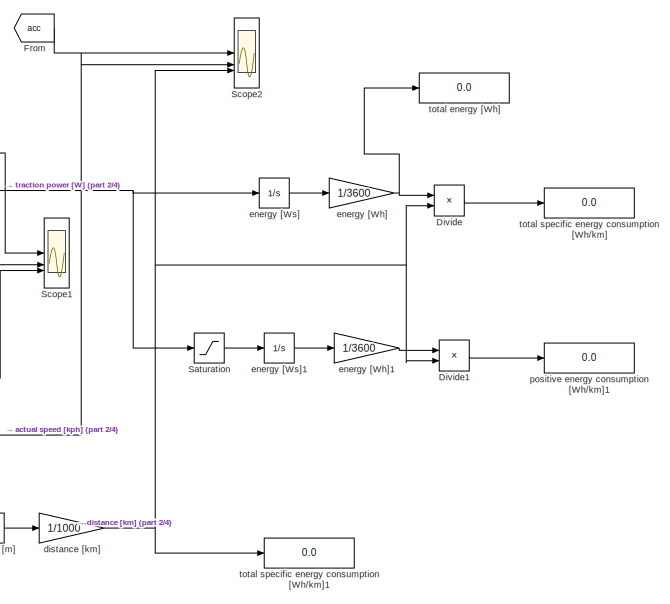
[diagram: root canvas - part 1/4, top right region]
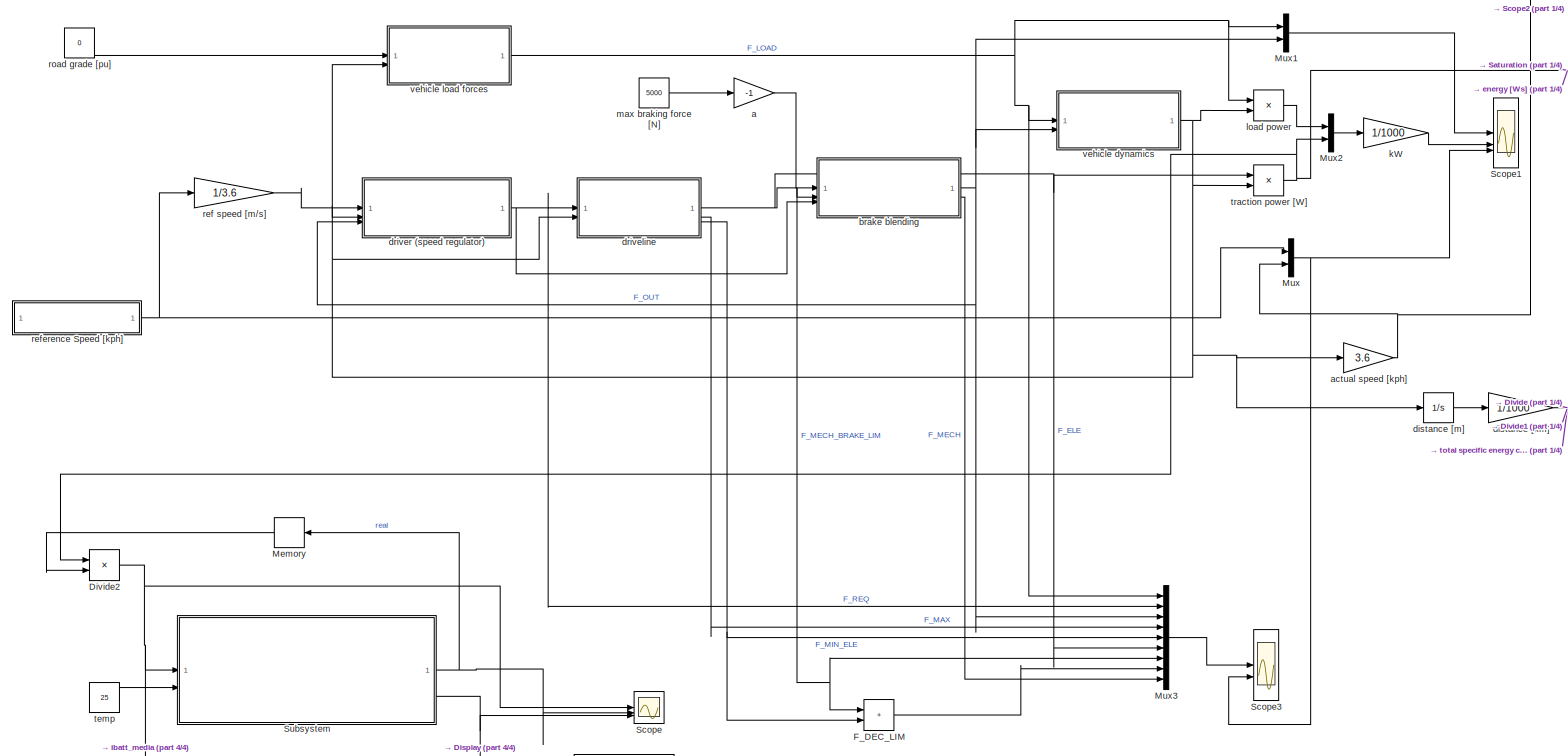
[diagram: root canvas - part 2/4, center side, full height]
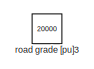
[diagram: root canvas - part 3/4, middle left region]
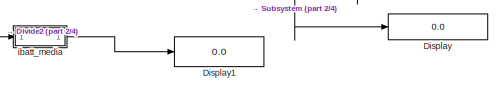
[diagram: root canvas - part 4/4, bottom left region]
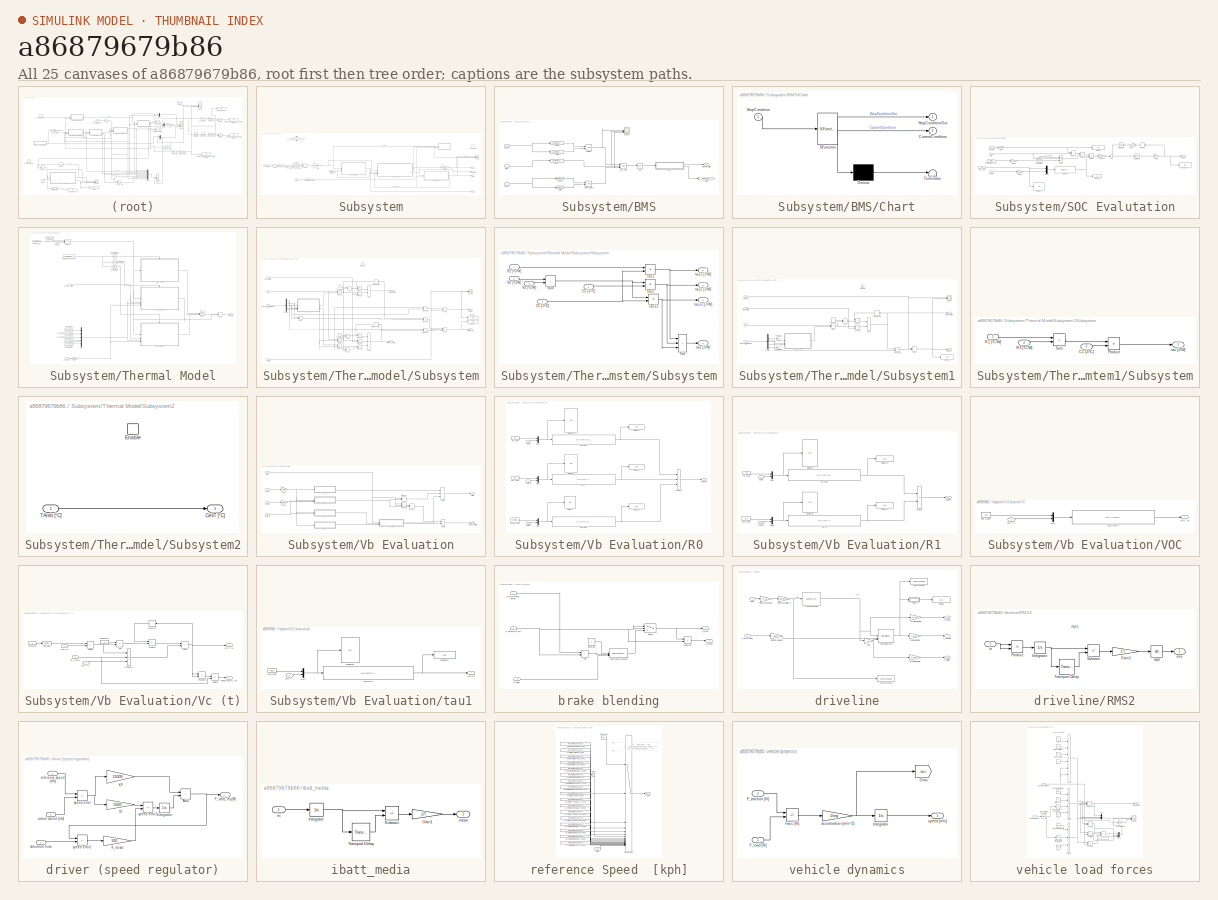
[diagram: thumbnail index - all 25 canvases of the model, root first then tree order]
MODEL slx_a86879679b86
KIND model
CONFIG AbsTol = auto
CONFIG EnableMultiTasking = off
CONFIG FixedStep = 0.01
CONFIG MaxStep = 0.1
CONFIG MinStep = auto
CONFIG RelTol = 1e-3
CONFIG SampleTimeConstraint = Unconstrained
CONFIG SolverName = ode1
CONFIG StartTime = 0.0
CONFIG StopTime = 1068
BLOCK [Display] Display
  Decimation = 1
BLOCK [Display] Display1
  Decimation = 1
BLOCK [Product] Divide
  Inputs = */
BLOCK [Product] Divide1
  Inputs = */
BLOCK [Product] Divide2
  Inputs = */
BLOCK [Sum] F_DEC_LIM
  IconShape = rectangular
BLOCK [From] From
  GotoTag = acc
  TagVisibility = global
BLOCK [Memory] Memory
  InitialCondition = 400
  NameLocation = top
BLOCK [Mux] Mux
  DisplayOption = bar
  Inputs = 2
BLOCK [Mux] Mux1
  DisplayOption = bar
  Inputs = 2
BLOCK [Mux] Mux2
  DisplayOption = bar
  Inputs = 2
BLOCK [Mux] Mux3
  DisplayOption = bar
  Inputs = 9
BLOCK [Saturate] Saturation
  LowerLimit = 0
  UpperLimit = inf
BLOCK [Scope] Scope
  Floating = off
  NumInputPorts = 3
  ScopeSpecificationString = Simulink.scopes.TimeScopeBlockCfg('CurrentConfiguration', extmgr.ConfigurationSet(extmgr.Configuration('Core','General UI',true),extmgr.Configuration('Core','Source UI',true),extmgr.Configuration('Sources','WiredSimulink',true,'DataLoggingVariableName','ScopeData1'),extmgr.Configuration('Visuals','Time Domain',true,'SerializedDisplays',{struct('MinYLimReal','-167.12455','MaxYLimReal','153.14421','...<+2738ch>
BLOCK [Scope] Scope1
  Floating = off
  NumInputPorts = 3
  ScopeSpecificationString = Simulink.scopes.TimeScopeBlockCfg('CurrentConfiguration', extmgr.ConfigurationSet(extmgr.Configuration('Core','General UI',true),extmgr.Configuration('Core','Source UI',true),extmgr.Configuration('Sources','WiredSimulink',true,'DataLoggingVariableName','ScopeData2'),extmgr.Configuration('Visuals','Time Domain',true,'SerializedDisplays',{struct('MinYLimReal','-5386.10075','MaxYLimReal','4539.51168'...<+4096ch>
BLOCK [Scope] Scope2
  Floating = off
  NumInputPorts = 3
  ScopeSpecificationString = Simulink.scopes.TimeScopeBlockCfg('CurrentConfiguration', extmgr.ConfigurationSet(extmgr.Configuration('Core','General UI',true),extmgr.Configuration('Core','Source UI',true),extmgr.Configuration('Sources','WiredSimulink',true,'DataLoggingVariableName','ScopeData1'),extmgr.Configuration('Visuals','Time Domain',true,'SerializedDisplays',{struct('MinYLimReal','-4.08693','MaxYLimReal','2.43022','YLab...<+4073ch>
BLOCK [Scope] Scope3
  Floating = off
  NumInputPorts = 2
  ScopeSpecificationString = Simulink.scopes.TimeScopeBlockCfg('CurrentConfiguration', extmgr.ConfigurationSet(extmgr.Configuration('Core','General UI',true),extmgr.Configuration('Core','Source UI',true),extmgr.Configuration('Sources','WiredSimulink',true,'DataLoggingVariableName','ScopeData1'),extmgr.Configuration('Visuals','Time Domain',true,'SerializedDisplays',{struct('MinYLimReal','-10063.82853','MaxYLimReal','5104.95242...<+3348ch>
BLOCK [SubSystem] Subsystem
BLOCK [SubSystem] Subsystem/BMS
BLOCK [Inport] Subsystem/BMS/CellT [°C]
  Port = 3
BLOCK [SubSystem] Subsystem/BMS/Chart
  ErrorFcn = Stateflow.Translate.translate
  PermitHierarchicalResolution = ExplicitOnly
  SFBlockType = Chart
  TreatAsAtomicUnit = on
BLOCK [Demux] Subsystem/BMS/Chart/ Demux 
  Outputs = 1
BLOCK [S-Function] Subsystem/BMS/Chart/ SFunction 
  EnableBusSupport = on
  FunctionName = sf_sfun
  PortCounts = [1 3]
  SFcnIsStateOwnerBlock = off
  SFunctionDeploymentMode = off
  Tag = Stateflow S-Function 3
BLOCK [Terminator] Subsystem/BMS/Chart/ Terminator 
BLOCK [Outport] Subsystem/BMS/Chart/CurrentCondition
  Port = 2
BLOCK [Inport] Subsystem/BMS/Chart/StopCondition
BLOCK [Outport] Subsystem/BMS/Chart/StopConditionOut
BLOCK [Logic] Subsystem/BMS/Current1
  AllPortsSameDT = off
  IconShape = distinctive
  Inputs = 3
  OutDataTypeStr = boolean
BLOCK [Goto] Subsystem/BMS/Goto
  GotoTag = StopCondition
  TagVisibility = global
BLOCK [Reference] Subsystem/BMS/IMAX  REF=simulink/Logic and Bit
Operations/Compare
To Constant
  SourceBlock = simulink/Logic and Bit\nOperations/Compare\nTo Constant
  SourceType = Compare To Constant
BLOCK [Logic] Subsystem/BMS/NOT
  AllPortsSameDT = off
  IconShape = distinctive
  Operator = NOT
  OutDataTypeStr = boolean
BLOCK [Scope] Subsystem/BMS/Scope
  Floating = off
  NumInputPorts = 3
  ScopeSpecificationString = Simulink.scopes.TimeScopeBlockCfg('CurrentConfiguration', extmgr.ConfigurationSet(extmgr.Configuration('Core','General UI',true),extmgr.Configuration('Core','Source UI',true),extmgr.Configuration('Sources','WiredSimulink',true,'DataLoggingVariableName','ScopeData1'),extmgr.Configuration('Visuals','Time Domain',true,'SerializedDisplays',{struct('MinYLimReal','0.9','MaxYLimReal','1.1','YLabelReal','...<+2706ch>
BLOCK [Outport] Subsystem/BMS/StopCondition
BLOCK [Logic] Subsystem/BMS/Temperature
  AllPortsSameDT = off
  IconShape = distinctive
  OutDataTypeStr = boolean
BLOCK [Reference] Subsystem/BMS/Vmax  REF=simulink/Logic and Bit
Operations/Compare
To Constant
  SourceBlock = simulink/Logic and Bit\nOperations/Compare\nTo Constant
  SourceType = Compare To Constant
BLOCK [Reference] Subsystem/BMS/Vmax2  REF=simulink/Logic and Bit
Operations/Compare
To Constant
  SourceBlock = simulink/Logic and Bit\nOperations/Compare\nTo Constant
  SourceType = Compare To Constant
BLOCK [Reference] Subsystem/BMS/Vmin  REF=simulink/Logic and Bit
Operations/Compare
To Constant
  SourceBlock = simulink/Logic and Bit\nOperations/Compare\nTo Constant
  SourceType = Compare To Constant
BLOCK [Reference] Subsystem/BMS/Vmin2  REF=simulink/Logic and Bit
Operations/Compare
To Constant
  SourceBlock = simulink/Logic and Bit\nOperations/Compare\nTo Constant
  SourceType = Compare To Constant
BLOCK [Logic] Subsystem/BMS/Voltage
  AllPortsSameDT = off
  IconShape = distinctive
  OutDataTypeStr = boolean
BLOCK [Inport] Subsystem/BMS/iB [A]
  Port = 2
BLOCK [Inport] Subsystem/BMS/vB(t) [V]
BLOCK [Outport] Subsystem/CellT [°C]
  Port = 2
BLOCK [Constant] Subsystem/Constant
  OutDataTypeStr = single
  Value = 0
BLOCK [DataTypeConversion] Subsystem/Data Type Conversion
  OutDataTypeStr = single
  RndMeth = Floor
  SaturateOnIntegerOverflow = off
BLOCK [DataTypeConversion] Subsystem/Data Type Conversion1
  OutDataTypeStr = single
  RndMeth = Floor
  SaturateOnIntegerOverflow = off
BLOCK [DataTypeConversion] Subsystem/Data Type Conversion2
  OutDataTypeStr = single
  RndMeth = Floor
  SaturateOnIntegerOverflow = off
BLOCK [Delay] Subsystem/Delay1
  DelayLength = 1
  InputPortMap = u0
BLOCK [From] Subsystem/From
  GotoTag = StopCondition
  TagVisibility = global
BLOCK [Gain] Subsystem/Gain
  Gain = 1/parallelNumber
  OutDataTypeStr = single
BLOCK [Gain] Subsystem/Gain1
  Gain = seriesNumber
BLOCK [Outport] Subsystem/PowrLoss(t) [W]
  Port = 4
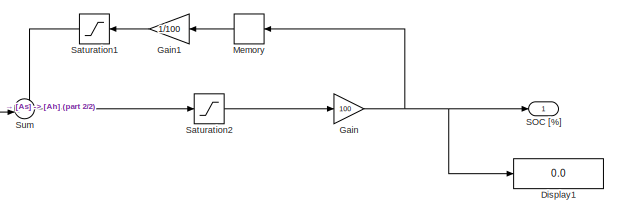
[diagram: Subsystem/SOC Evalutation - part 1/2, top right region]
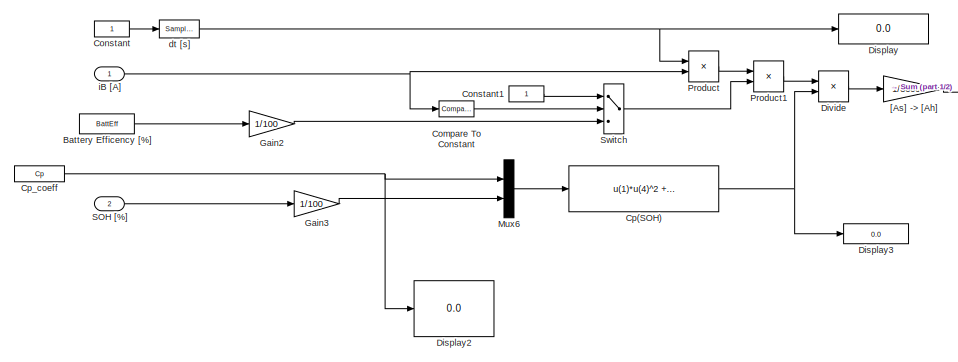
[diagram: Subsystem/SOC Evalutation - part 2/2, left side, full height]
BLOCK [SubSystem] Subsystem/SOC Evalutation
BLOCK [Constant] Subsystem/SOC Evalutation/Battery Efficency [%]
  OutDataTypeStr = single
  Value = BattEff
BLOCK [Reference] Subsystem/SOC Evalutation/Compare To Constant  REF=simulink/Logic and Bit
Operations/Compare
To Constant
  SourceBlock = simulink/Logic and Bit\nOperations/Compare\nTo Constant
  SourceType = Compare To Constant
BLOCK [Constant] Subsystem/SOC Evalutation/Constant
  OutDataTypeStr = single
BLOCK [Constant] Subsystem/SOC Evalutation/Constant1
  OutDataTypeStr = single
BLOCK [Fcn] Subsystem/SOC Evalutation/Cp(SOH)
  Expr = u(1)*u(4)^2 + u(2)*u(4) + u(3)
BLOCK [Constant] Subsystem/SOC Evalutation/Cp_coeff
  OutDataTypeStr = single
  Value = Cp
BLOCK [Display] Subsystem/SOC Evalutation/Display
  Decimation = 1
BLOCK [Display] Subsystem/SOC Evalutation/Display1
  Decimation = 1
BLOCK [Display] Subsystem/SOC Evalutation/Display2
  Decimation = 1
BLOCK [Display] Subsystem/SOC Evalutation/Display3
  Decimation = 1
BLOCK [Product] Subsystem/SOC Evalutation/Divide
  Inputs = */
BLOCK [Gain] Subsystem/SOC Evalutation/Gain
  Gain = 100
BLOCK [Gain] Subsystem/SOC Evalutation/Gain1
  Gain = 1/100
  NameLocation = top
BLOCK [Gain] Subsystem/SOC Evalutation/Gain2
  Gain = 1/100
BLOCK [Gain] Subsystem/SOC Evalutation/Gain3
  Gain = 1/100
BLOCK [Memory] Subsystem/SOC Evalutation/Memory
  InitialCondition = InitialSOC
  NameLocation = top
BLOCK [Mux] Subsystem/SOC Evalutation/Mux6
  DisplayOption = bar
  Inputs = 2
BLOCK [Product] Subsystem/SOC Evalutation/Product
  OutDataTypeStr = single
BLOCK [Product] Subsystem/SOC Evalutation/Product1
BLOCK [Outport] Subsystem/SOC Evalutation/SOC [%]
BLOCK [Inport] Subsystem/SOC Evalutation/SOH [%]
  Port = 2
BLOCK [Saturate] Subsystem/SOC Evalutation/Saturation1
  LowerLimit = 0.001
  NameLocation = top
  UpperLimit = 0.999
BLOCK [Saturate] Subsystem/SOC Evalutation/Saturation2
  LowerLimit = 0.001
  UpperLimit = 0.999
BLOCK [Sum] Subsystem/SOC Evalutation/Sum
  Inputs = +-|
  OutDataTypeStr = single
BLOCK [Switch] Subsystem/SOC Evalutation/Switch
  Criteria = u2 > Threshold
  InputSameDT = off
  SaturateOnIntegerOverflow = off
BLOCK [Gain] Subsystem/SOC Evalutation/[As] -> [Ah]
  Gain = 1/3600
BLOCK [SampleTimeMath] Subsystem/SOC Evalutation/dt [s]
  TsampMathOp = Ts Only
BLOCK [Inport] Subsystem/SOC Evalutation/iB [A]
BLOCK [Outport] Subsystem/SOC [%]
  Port = 3
BLOCK [Constant] Subsystem/SOH [%]
  OutDataTypeStr = single
  Value = InitialSOH
BLOCK [Scope] Subsystem/Scope1
  Floating = off
  NumInputPorts = 3
  ScopeSpecificationString = Simulink.scopes.TimeScopeBlockCfg('CurrentConfiguration', extmgr.ConfigurationSet(extmgr.Configuration('Core','General UI',true),extmgr.Configuration('Core','Source UI',true),extmgr.Configuration('Sources','WiredSimulink',true,'DataLoggingVariableName','ScopeData2'),extmgr.Configuration('Visuals','Time Domain',true,'SerializedDisplays',{struct('MinYLimReal','2.28821','MaxYLimReal','4.36561','YLabe...<+2848ch>
BLOCK [Stop] Subsystem/Stop Simulation
BLOCK [Switch] Subsystem/Switch
  Criteria = u2 > Threshold
  InputSameDT = off
  SaturateOnIntegerOverflow = off
  Threshold = 1
BLOCK [Inport] Subsystem/TAmb [°C]
  Port = 2
BLOCK [SubSystem] Subsystem/Thermal Model
BLOCK [Outport] Subsystem/Thermal Model/CellT [°C]
BLOCK [Reference] Subsystem/Thermal Model/Compare To Constant  REF=simulink/Logic and Bit
Operations/Compare
To Constant
  SourceBlock = simulink/Logic and Bit\nOperations/Compare\nTo Constant
  SourceType = Compare To Constant
BLOCK [Reference] Subsystem/Thermal Model/Compare To Constant1  REF=simulink/Logic and Bit
Operations/Compare
To Constant
  SourceBlock = simulink/Logic and Bit\nOperations/Compare\nTo Constant
  SourceType = Compare To Constant
BLOCK [Reference] Subsystem/Thermal Model/Compare To Constant2  REF=simulink/Logic and Bit
Operations/Compare
To Constant
  SourceBlock = simulink/Logic and Bit\nOperations/Compare\nTo Constant
  SourceType = Compare To Constant
BLOCK [Constant] Subsystem/Thermal Model/Constant
  OutDataTypeStr = single
BLOCK [Constant] Subsystem/Thermal Model/Constant1
  OutDataTypeStr = single
  Value = R2Therml
BLOCK [Constant] Subsystem/Thermal Model/Constant2
  OutDataTypeStr = single
  Value = R1Therml
BLOCK [Constant] Subsystem/Thermal Model/Constant3
  OutDataTypeStr = single
  Value = R3Therml
BLOCK [Constant] Subsystem/Thermal Model/Constant4
  OutDataTypeStr = single
  Value = C1Thermal
BLOCK [Constant] Subsystem/Thermal Model/Constant5
  OutDataTypeStr = single
  Value = C2Thermal
BLOCK [Delay] Subsystem/Thermal Model/Delay
  DelayLength = 1
  InitialConditionSource = Input port
  InputPortMap = u0,p4
BLOCK [Constant] Subsystem/Thermal Model/Display Temp
  OutDataTypeStr = single
  Value = TRoom
BLOCK [Merge] Subsystem/Thermal Model/Merge
  Inputs = 3
BLOCK [Mux] Subsystem/Thermal Model/Mux
  DisplayOption = bar
  Inputs = 5
BLOCK [Inport] Subsystem/Thermal Model/PowrLoss(t) [W]
BLOCK [Constant] Subsystem/Thermal Model/Reference
  OutDataTypeStr = single
  Value = ThermReff
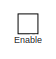
[diagram: Subsystem/Thermal Model/Subsystem - part 1/3, top center region]
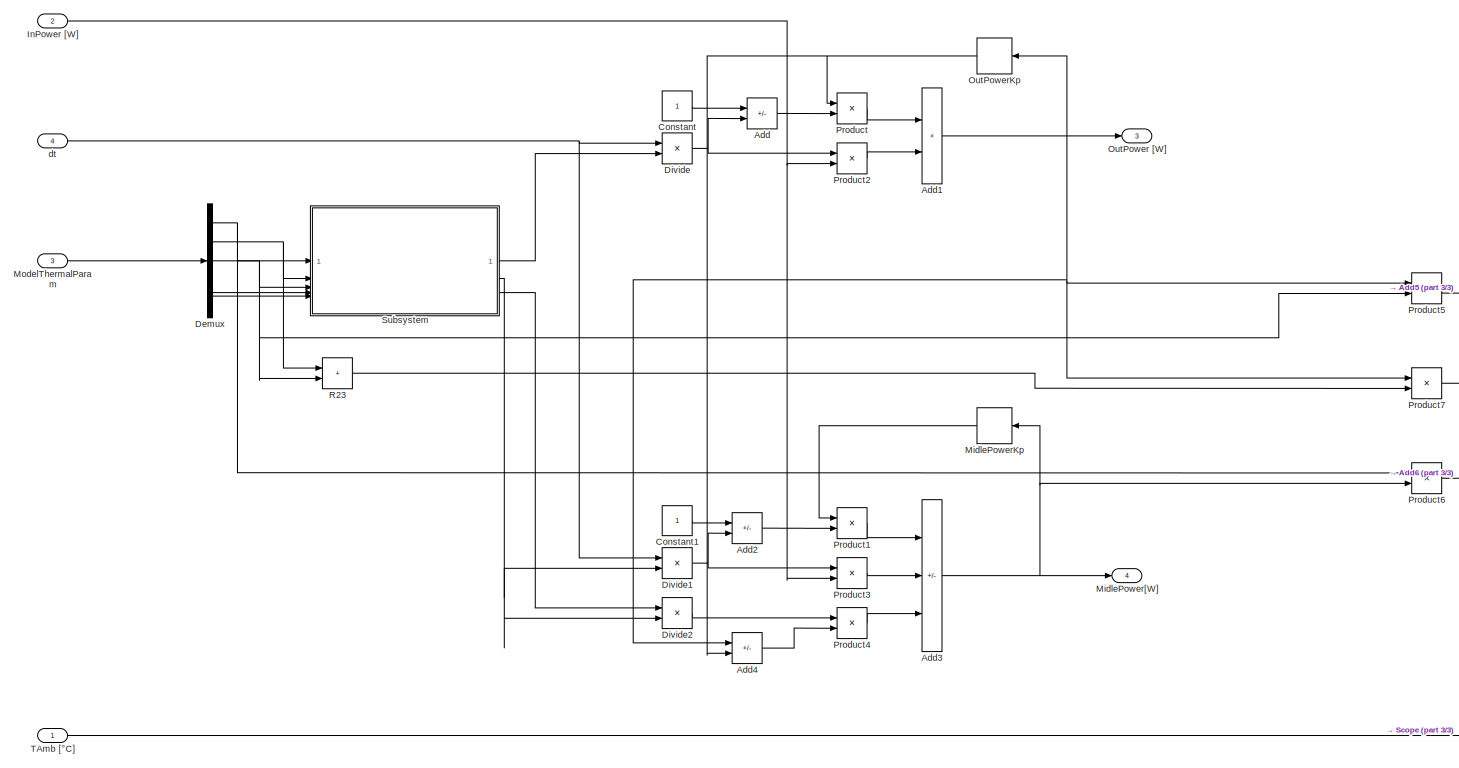
[diagram: Subsystem/Thermal Model/Subsystem - part 2/3, most of the canvas]
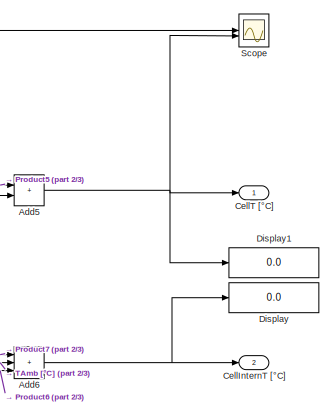
[diagram: Subsystem/Thermal Model/Subsystem - part 3/3, middle right region]
BLOCK [SubSystem] Subsystem/Thermal Model/Subsystem
BLOCK [Sum] Subsystem/Thermal Model/Subsystem/Add
  IconShape = rectangular
  Inputs = +-
BLOCK [Sum] Subsystem/Thermal Model/Subsystem/Add1
  IconShape = rectangular
BLOCK [Sum] Subsystem/Thermal Model/Subsystem/Add2
  IconShape = rectangular
  Inputs = +-
BLOCK [Sum] Subsystem/Thermal Model/Subsystem/Add3
  IconShape = rectangular
  Inputs = ++-
BLOCK [Sum] Subsystem/Thermal Model/Subsystem/Add4
  IconShape = rectangular
  Inputs = +-
BLOCK [Sum] Subsystem/Thermal Model/Subsystem/Add5
  IconShape = rectangular
BLOCK [Sum] Subsystem/Thermal Model/Subsystem/Add6
  IconShape = rectangular
  Inputs = +++
BLOCK [Outport] Subsystem/Thermal Model/Subsystem/CellInternT [°C]
  Port = 2
BLOCK [Outport] Subsystem/Thermal Model/Subsystem/CellT [°C]
BLOCK [Constant] Subsystem/Thermal Model/Subsystem/Constant
  OutDataTypeStr = single
BLOCK [Constant] Subsystem/Thermal Model/Subsystem/Constant1
  OutDataTypeStr = single
BLOCK [Demux] Subsystem/Thermal Model/Subsystem/Demux
  Outputs = 5
BLOCK [Display] Subsystem/Thermal Model/Subsystem/Display
  Decimation = 1
BLOCK [Display] Subsystem/Thermal Model/Subsystem/Display1
  Decimation = 1
BLOCK [Product] Subsystem/Thermal Model/Subsystem/Divide
  Inputs = */
BLOCK [Product] Subsystem/Thermal Model/Subsystem/Divide1
  Inputs = */
BLOCK [Product] Subsystem/Thermal Model/Subsystem/Divide2
  Inputs = */
BLOCK [EnablePort] Subsystem/Thermal Model/Subsystem/Enable
BLOCK [Inport] Subsystem/Thermal Model/Subsystem/InPower [W]
  Port = 2
BLOCK [Delay] Subsystem/Thermal Model/Subsystem/MidlePowerKp 
  DelayLength = 1
  InputPortMap = u0
BLOCK [Outport] Subsystem/Thermal Model/Subsystem/MidlePower[W]
  Port = 4
BLOCK [Inport] Subsystem/Thermal Model/Subsystem/ModelThermalParam
  Port = 3
BLOCK [Outport] Subsystem/Thermal Model/Subsystem/OutPower [W]
  Port = 3
BLOCK [Delay] Subsystem/Thermal Model/Subsystem/OutPowerKp
  DelayLength = 1
  InputPortMap = u0
BLOCK [Product] Subsystem/Thermal Model/Subsystem/Product
  OutDataTypeStr = single
BLOCK [Product] Subsystem/Thermal Model/Subsystem/Product1
  OutDataTypeStr = single
BLOCK [Product] Subsystem/Thermal Model/Subsystem/Product2
  OutDataTypeStr = single
BLOCK [Product] Subsystem/Thermal Model/Subsystem/Product3
  OutDataTypeStr = single
BLOCK [Product] Subsystem/Thermal Model/Subsystem/Product4
  OutDataTypeStr = single
BLOCK [Product] Subsystem/Thermal Model/Subsystem/Product5
  OutDataTypeStr = single
BLOCK [Product] Subsystem/Thermal Model/Subsystem/Product6
  OutDataTypeStr = single
BLOCK [Product] Subsystem/Thermal Model/Subsystem/Product7
  OutDataTypeStr = single
BLOCK [Sum] Subsystem/Thermal Model/Subsystem/R23
  IconShape = rectangular
BLOCK [Scope] Subsystem/Thermal Model/Subsystem/Scope
  Floating = off
  NumInputPorts = 2
  ScopeSpecificationString = Simulink.scopes.TimeScopeBlockCfg('CurrentConfiguration', extmgr.ConfigurationSet(extmgr.Configuration('Core','General UI',true),extmgr.Configuration('Core','Source UI',true),extmgr.Configuration('Sources','WiredSimulink',true,'DataLoggingVariableName','ScopeData1'),extmgr.Configuration('Visuals','Time Domain',true,'SerializedDisplays',{struct('MinYLimReal','19.9849','MaxYLimReal','20.13592','YLab...<+1434ch>
BLOCK [SubSystem] Subsystem/Thermal Model/Subsystem/Subsystem
BLOCK [Inport] Subsystem/Thermal Model/Subsystem/Subsystem/C1 [J//°C]
  Port = 4
BLOCK [Inport] Subsystem/Thermal Model/Subsystem/Subsystem/C2 [J//°C]
  Port = 5
BLOCK [Inport] Subsystem/Thermal Model/Subsystem/Subsystem/R1 [°C//W]
BLOCK [Inport] Subsystem/Thermal Model/Subsystem/Subsystem/R2 [°C//W]
  Port = 2
BLOCK [Inport] Subsystem/Thermal Model/Subsystem/Subsystem/R3 [°C//W]
  Port = 3
BLOCK [Sum] Subsystem/Thermal Model/Subsystem/Subsystem/Sum
  IconShape = rectangular
BLOCK [Sum] Subsystem/Thermal Model/Subsystem/Subsystem/Tau
  IconShape = rectangular
  Inputs = +++
BLOCK [Product] Subsystem/Thermal Model/Subsystem/Subsystem/Tau1
BLOCK [Product] Subsystem/Thermal Model/Subsystem/Subsystem/Tau12
BLOCK [Product] Subsystem/Thermal Model/Subsystem/Subsystem/Tau2
BLOCK [Outport] Subsystem/Thermal Model/Subsystem/Subsystem/tau [J//W]
BLOCK [Outport] Subsystem/Thermal Model/Subsystem/Subsystem/tau1 [J//W]
  Port = 2
BLOCK [Outport] Subsystem/Thermal Model/Subsystem/Subsystem/tau12 [J//W]
  Port = 4
BLOCK [Outport] Subsystem/Thermal Model/Subsystem/Subsystem/tau2 [J//W]
  Port = 3
BLOCK [Inport] Subsystem/Thermal Model/Subsystem/TAmb [°C]
BLOCK [Inport] Subsystem/Thermal Model/Subsystem/dt
  Port = 4
BLOCK [SubSystem] Subsystem/Thermal Model/Subsystem1
BLOCK [Sum] Subsystem/Thermal Model/Subsystem1/Add
  IconShape = rectangular
  Inputs = +-
BLOCK [Sum] Subsystem/Thermal Model/Subsystem1/Add1
  IconShape = rectangular
BLOCK [Sum] Subsystem/Thermal Model/Subsystem1/Add5
  IconShape = rectangular
BLOCK [Outport] Subsystem/Thermal Model/Subsystem1/CellT [°C]
BLOCK [Constant] Subsystem/Thermal Model/Subsystem1/Constant
  OutDataTypeStr = single
BLOCK [Demux] Subsystem/Thermal Model/Subsystem1/Demux
  Outputs = 5
BLOCK [Display] Subsystem/Thermal Model/Subsystem1/Display1
  Decimation = 1
BLOCK [Product] Subsystem/Thermal Model/Subsystem1/Divide
  Inputs = */
BLOCK [EnablePort] Subsystem/Thermal Model/Subsystem1/Enable
BLOCK [Inport] Subsystem/Thermal Model/Subsystem1/InPower [W]
  Port = 2
BLOCK [Inport] Subsystem/Thermal Model/Subsystem1/ModelThermalParam
  Port = 3
BLOCK [Outport] Subsystem/Thermal Model/Subsystem1/OutPower [W]
  Port = 2
BLOCK [Delay] Subsystem/Thermal Model/Subsystem1/OutPowerKp
  DelayLength = 1
  InputPortMap = u0
BLOCK [Product] Subsystem/Thermal Model/Subsystem1/Product
  OutDataTypeStr = single
BLOCK [Product] Subsystem/Thermal Model/Subsystem1/Product2
  OutDataTypeStr = single
BLOCK [Product] Subsystem/Thermal Model/Subsystem1/Product5
  OutDataTypeStr = single
BLOCK [Scope] Subsystem/Thermal Model/Subsystem1/Scope
  Floating = off
  NumInputPorts = 2
  ScopeSpecificationString = Simulink.scopes.TimeScopeBlockCfg('CurrentConfiguration', extmgr.ConfigurationSet(extmgr.Configuration('Core','General UI',true),extmgr.Configuration('Core','Source UI',true),extmgr.Configuration('Sources','WiredSimulink',true),extmgr.Configuration('Visuals','Time Domain',true,'SerializedDisplays',{struct('MinYLimReal','19.98404','MaxYLimReal','20.14366','YLabelReal','','MinYLimMag','19.98404','Ma...<+1399ch>
BLOCK [SubSystem] Subsystem/Thermal Model/Subsystem1/Subsystem
BLOCK [Inport] Subsystem/Thermal Model/Subsystem1/Subsystem/C1 [J//°C]
  Port = 3
BLOCK [Product] Subsystem/Thermal Model/Subsystem1/Subsystem/Product
BLOCK [Inport] Subsystem/Thermal Model/Subsystem1/Subsystem/R1 [°C//W]
BLOCK [Inport] Subsystem/Thermal Model/Subsystem1/Subsystem/R3 [°C//W]
  Port = 2
BLOCK [Sum] Subsystem/Thermal Model/Subsystem1/Subsystem/Sum
  IconShape = rectangular
BLOCK [Outport] Subsystem/Thermal Model/Subsystem1/Subsystem/tau [J//W]
BLOCK [Inport] Subsystem/Thermal Model/Subsystem1/TAmb [°C]
BLOCK [Terminator] Subsystem/Thermal Model/Subsystem1/Terminator
BLOCK [Terminator] Subsystem/Thermal Model/Subsystem1/Terminator1
BLOCK [Inport] Subsystem/Thermal Model/Subsystem1/dt
  Port = 4
BLOCK [SubSystem] Subsystem/Thermal Model/Subsystem2
BLOCK [Outport] Subsystem/Thermal Model/Subsystem2/CellT [°C]
BLOCK [EnablePort] Subsystem/Thermal Model/Subsystem2/Enable
BLOCK [Inport] Subsystem/Thermal Model/Subsystem2/TAmb [°C]
BLOCK [Switch] Subsystem/Thermal Model/Switch1
  Criteria = u2 > Threshold
  InputSameDT = off
  SaturateOnIntegerOverflow = off
  Threshold = 0.5
BLOCK [Inport] Subsystem/Thermal Model/TAmb [°C]
  Port = 2
BLOCK [Constant] Subsystem/Thermal Model/Thermal Model Selector
  OutDataTypeStr = single
  Value = ThermalModelType
BLOCK [SampleTimeMath] Subsystem/Thermal Model/dt [s]
  TsampMathOp = Ts Only
BLOCK [SubSystem] Subsystem/Vb Evaluation
BLOCK [Gain] Subsystem/Vb Evaluation/Gain
  Gain = 1/100
  OutDataTypeStr = single
BLOCK [Gain] Subsystem/Vb Evaluation/Gain1
  Gain = 1/100
BLOCK [Outport] Subsystem/Vb Evaluation/PowrLoss(t) [W]
  Port = 2
BLOCK [Product] Subsystem/Vb Evaluation/Product
  OutDataTypeStr = single
BLOCK [Product] Subsystem/Vb Evaluation/Product1
  OutDataTypeStr = single
BLOCK [SubSystem] Subsystem/Vb Evaluation/R0
BLOCK [Product] Subsystem/Vb Evaluation/R0 * iB^2
  OutDataTypeStr = single
BLOCK [Display] Subsystem/Vb Evaluation/R0/Display3
  Decimation = 1
BLOCK [Display] Subsystem/Vb Evaluation/R0/Display4
  Decimation = 1
BLOCK [Display] Subsystem/Vb Evaluation/R0/Display5
  Decimation = 1
BLOCK [Display] Subsystem/Vb Evaluation/R0/Display6
  Decimation = 1
BLOCK [Display] Subsystem/Vb Evaluation/R0/Display7
  Decimation = 1
BLOCK [Display] Subsystem/Vb Evaluation/R0/Display8
  Decimation = 1
BLOCK [Mux] Subsystem/Vb Evaluation/R0/Mux1
  DisplayOption = bar
  Inputs = 2
BLOCK [Mux] Subsystem/Vb Evaluation/R0/Mux2
  DisplayOption = bar
  Inputs = 2
BLOCK [Mux] Subsystem/Vb Evaluation/R0/Mux3
  DisplayOption = bar
  Inputs = 2
BLOCK [Product] Subsystem/Vb Evaluation/R0/Product
  Inputs = 3
BLOCK [Fcn] Subsystem/Vb Evaluation/R0/R0 (SOC)
  Expr = u(1)*u(8)^u(2) + u(3)*log(u(8)) + u(4)*u(8)^3 + u(5)*u(8)^2 +u(6)*u(8) +u(7)
BLOCK [Fcn] Subsystem/Vb Evaluation/R0/R0 (SOH)
  Expr = u(1)*u(4)^2 + u(2)*u(4) + u(3)
BLOCK [Fcn] Subsystem/Vb Evaluation/R0/R0 (T)
  Expr = (u(1)*u(6)^4 + u(2)*u(6)^3 + u(3)*u(6)^2 + u(4)*u(6) + u(5))
BLOCK [Outport] Subsystem/Vb Evaluation/R0/R0 [Ohm]
BLOCK [Constant] Subsystem/Vb Evaluation/R0/R0SOH_coeff
  OutDataTypeStr = single
  Value = R0SOH
BLOCK [Constant] Subsystem/Vb Evaluation/R0/R0T_coeff
  OutDataTypeStr = single
  Value = R0T
BLOCK [Constant] Subsystem/Vb Evaluation/R0/R0_coeff
  OutDataTypeStr = single
  Value = R0
BLOCK [Inport] Subsystem/Vb Evaluation/R0/SOC [ ]
BLOCK [Inport] Subsystem/Vb Evaluation/R0/SOH [ ]
  Port = 3
BLOCK [Inport] Subsystem/Vb Evaluation/R0/TCell [°C]
  Port = 2
BLOCK [SubSystem] Subsystem/Vb Evaluation/R1
BLOCK [Display] Subsystem/Vb Evaluation/R1/Display10
  Decimation = 1
BLOCK [Display] Subsystem/Vb Evaluation/R1/Display11
  Decimation = 1
BLOCK [Display] Subsystem/Vb Evaluation/R1/Display12
  Decimation = 1
BLOCK [Display] Subsystem/Vb Evaluation/R1/Display9
  Decimation = 1
BLOCK [Mux] Subsystem/Vb Evaluation/R1/Mux4
  DisplayOption = bar
  Inputs = 2
BLOCK [Mux] Subsystem/Vb Evaluation/R1/Mux5
  DisplayOption = bar
  Inputs = 2
BLOCK [Product] Subsystem/Vb Evaluation/R1/Product
BLOCK [Fcn] Subsystem/Vb Evaluation/R1/R1 (SOC)
  Expr = u(1)*u(8)^u(2) + u(3)*log(u(8)) + u(4)*u(8)^3 + u(5)*u(8)^2 +u(6)*u(8) +u(7)
BLOCK [Fcn] Subsystem/Vb Evaluation/R1/R1 (T)
  Expr = (u(1)*u(6)^4 + u(2)*u(6)^3 + u(3)*u(6)^2 + u(4)*u(6) + u(5))
BLOCK [Outport] Subsystem/Vb Evaluation/R1/R1 [Ohm]
BLOCK [Constant] Subsystem/Vb Evaluation/R1/R1T_coeff
  OutDataTypeStr = single
  Value = R1T
BLOCK [Constant] Subsystem/Vb Evaluation/R1/R1_coeff
  OutDataTypeStr = single
  Value = R1
BLOCK [Inport] Subsystem/Vb Evaluation/R1/SOC [ ]
BLOCK [Inport] Subsystem/Vb Evaluation/R1/TCell [°C]
  Port = 2
BLOCK [Inport] Subsystem/Vb Evaluation/SOC [%]
  Port = 2
BLOCK [Inport] Subsystem/Vb Evaluation/SOH [%]
  Port = 3
BLOCK [Sum] Subsystem/Vb Evaluation/Sum
  IconShape = rectangular
  Inputs = +--
  OutDataTypeStr = single
BLOCK [Sum] Subsystem/Vb Evaluation/Sum1
  IconShape = rectangular
  OutDataTypeStr = single
BLOCK [Inport] Subsystem/Vb Evaluation/TCell [°C]
  Port = 4
BLOCK [SubSystem] Subsystem/Vb Evaluation/VOC
BLOCK [Mux] Subsystem/Vb Evaluation/VOC/Mux
  DisplayOption = bar
  Inputs = 2
BLOCK [Inport] Subsystem/Vb Evaluation/VOC/SOC [ ]
BLOCK [Outport] Subsystem/Vb Evaluation/VOC/VOC [V]
BLOCK [Fcn] Subsystem/Vb Evaluation/VOC/VOC(SOC)
  Expr = u(1) + u(2)*u(7)+u(3)*u(7)^2+ u(4)/u(7) + u(5)*log(u(7)) + u(6)*log(1-u(7))
BLOCK [Constant] Subsystem/Vb Evaluation/VOC/Voc Coeff
  OutDataTypeStr = single
  Value = voc
BLOCK [SubSystem] Subsystem/Vb Evaluation/Vc (t)
BLOCK [Sum] Subsystem/Vb Evaluation/Vc (t)/Add
  AccumDataTypeStr = single
  IconShape = rectangular
  Inputs = +-
  OutDataTypeStr = single
BLOCK [Sum] Subsystem/Vb Evaluation/Vc (t)/Add1
  AccumDataTypeStr = single
  IconShape = rectangular
  OutDataTypeStr = single
BLOCK [Constant] Subsystem/Vb Evaluation/Vc (t)/Constant
  OutDataTypeStr = single
BLOCK [Constant] Subsystem/Vb Evaluation/Vc (t)/Constant1
  OutDataTypeStr = single
BLOCK [Product] Subsystem/Vb Evaluation/Vc (t)/Divide
  Inputs = */
  OutDataTypeStr = single
BLOCK [Product] Subsystem/Vb Evaluation/Vc (t)/Divide1
  Inputs = */
  OutDataTypeStr = single
BLOCK [Memory] Subsystem/Vb Evaluation/Vc (t)/Memory
  NameLocation = top
BLOCK [Outport] Subsystem/Vb Evaluation/Vc (t)/PowerLossVc1 [W]
  Port = 2
BLOCK [Product] Subsystem/Vb Evaluation/Vc (t)/Product
BLOCK [Product] Subsystem/Vb Evaluation/Vc (t)/Product1
  Inputs = 3
  OutDataTypeStr = single
BLOCK [Product] Subsystem/Vb Evaluation/Vc (t)/Product2
  OutDataTypeStr = single
BLOCK [Inport] Subsystem/Vb Evaluation/Vc (t)/R1 [Ohm]
  Port = 2
BLOCK [Outport] Subsystem/Vb Evaluation/Vc (t)/Vc(t) [V]
BLOCK [SampleTimeMath] Subsystem/Vb Evaluation/Vc (t)/dt [s]
  TsampMathOp = Ts Only
BLOCK [Inport] Subsystem/Vb Evaluation/Vc (t)/iB(t) [A]
BLOCK [Inport] Subsystem/Vb Evaluation/Vc (t)/tau1 [s]
  Port = 3
BLOCK [Inport] Subsystem/Vb Evaluation/iB(t) [A]
BLOCK [SubSystem] Subsystem/Vb Evaluation/tau1
BLOCK [Display] Subsystem/Vb Evaluation/tau1/Display15
  Decimation = 1
BLOCK [Display] Subsystem/Vb Evaluation/tau1/Display16
  Decimation = 1
BLOCK [Mux] Subsystem/Vb Evaluation/tau1/Mux7
  DisplayOption = bar
  Inputs = 2
BLOCK [Inport] Subsystem/Vb Evaluation/tau1/SOC [ ]
BLOCK [Outport] Subsystem/Vb Evaluation/tau1/tau1 [s]
BLOCK [Fcn] Subsystem/Vb Evaluation/tau1/tau1(SOC)
  Expr = u(1)*u(5)^3 + u(2)*u(5)^2 + u(3)*u(5) + u(4)
BLOCK [Constant] Subsystem/Vb Evaluation/tau1/tau1_coeff
  OutDataTypeStr = single
  Value = tau1
BLOCK [Outport] Subsystem/Vb Evaluation/vB(t) [V]
BLOCK [Inport] Subsystem/iB [A]
BLOCK [Outport] Subsystem/vB [V]
BLOCK [Gain] a
  Gain = -1
BLOCK [Gain] actual speed [kph]
  Gain = 3.6
BLOCK [SubSystem] brake blending
BLOCK [Sum] brake blending/Add
  IconShape = rectangular
BLOCK [Constant] brake blending/Constant
  Value = 0
BLOCK [Inport] brake blending/F_MAX_MECH_BRAKE
  Port = 2
BLOCK [Outport] brake blending/F_MECH
  Port = 2
BLOCK [Outport] brake blending/F_OUT
BLOCK [Inport] brake blending/F_REQ
  Port = 3
BLOCK [Inport] brake blending/F_TRACTION_SAT
BLOCK [Reference] brake blending/Saturation Dynamic  REF=simulink/Discontinuities/Saturation
Dynamic
  SourceBlock = simulink/Discontinuities/Saturation\nDynamic
  SourceType = Saturation Dynamic
BLOCK [Sum] brake blending/Subtract
  IconShape = rectangular
  Inputs = +-
BLOCK [Switch] brake blending/Switch
  Criteria = u2 > Threshold
  InputSameDT = off
  SaturateOnIntegerOverflow = off
BLOCK [Gain] distance [km]
  Gain = 1/1000
BLOCK [Integrator] distance [m]
  InitialCondition = 0.1
BLOCK [SubSystem] driveline
BLOCK [Lookup_n-D] driveline/1-D Lookup Table
  BreakpointsForDimension1 = n
  InputPortMap = u0
  InternalRulePriority = Speed
  NumberOfTableDimensions = 1
  RndMeth = Simplest
  Table = tm
BLOCK [Display] driveline/Display
  Decimation = 1
BLOCK [Outport] driveline/F_MAX [N]
  Port = 2
BLOCK [Outport] driveline/F_MIN [N]
  Port = 3
BLOCK [Outport] driveline/F_TRAC [N]
BLOCK [Inport] driveline/F_trac_req [N]
BLOCK [SubSystem] driveline/RMS2
BLOCK [Gain] driveline/RMS2/Gain1
  Gain = 1/T
BLOCK [Integrator] driveline/RMS2/Integrator
  NameLocation = left
BLOCK [Product] driveline/RMS2/Product
BLOCK [Sqrt] driveline/RMS2/Sqrt
BLOCK [Sum] driveline/RMS2/Subtract
  IconShape = rectangular
  Inputs = +-
BLOCK [TransportDelay] driveline/RMS2/Transport Delay
  BufferSize = 200000
  DelayTime = T
BLOCK [Inport] driveline/RMS2/in
BLOCK [Outport] driveline/RMS2/rms
BLOCK [Gain] driveline/TMIN
  Gain = -1
BLOCK [ToWorkspace] driveline/To Workspace
  FixptAsFi = on
  MaxDataPoints = inf
  SampleTime = -1
  VariableName = t_out
BLOCK [ToWorkspace] driveline/To Workspace1
  FixptAsFi = on
  MaxDataPoints = inf
  SampleTime = -1
  VariableName = n_out
BLOCK [Gain] driveline/motor speed [min-1]
  Gain = 60/2/pi
BLOCK [Gain] driveline/motor speed [rad//s]
  Gain = rt/rw
BLOCK [Gain] driveline/motor torque [Nm]
  Gain = rw/rt
BLOCK [Reference] driveline/saturated torque  REF=simulink/Discontinuities/Saturation
Dynamic
  SourceBlock = simulink/Discontinuities/Saturation\nDynamic
  SourceType = Saturation Dynamic
BLOCK [Gain] driveline/tractive effort [N]
  Gain = rt/rw
BLOCK [Gain] driveline/tractive effort [N]1
  Gain = rt/rw
BLOCK [Gain] driveline/tractive effort [N]2
  Gain = rt/rw
BLOCK [Inport] driveline/v[m//s]
  Port = 2
BLOCK [SubSystem] driver (speed regulator)
BLOCK [Sum] driver (speed regulator)/Add
  IconShape = rectangular
BLOCK [Outport] driver (speed regulator)/F_tract_req[N]
BLOCK [Integrator] driver (speed regulator)/Integrator
BLOCK [Gain] driver (speed regulator)/KI
  Gain = 5000
BLOCK [Gain] driver (speed regulator)/KP
  Gain = 15000
BLOCK [Gain] driver (speed regulator)/K_desat
  Gain = 100
BLOCK [Inport] driver (speed regulator)/actual speed [m//s]
  Port = 2
BLOCK [Inport] driver (speed regulator)/reference speed [m//s]
BLOCK [Inport] driver (speed regulator)/saturated force
  Port = 3
BLOCK [Sum] driver (speed regulator)/speed error
  IconShape = rectangular
  Inputs = +-
BLOCK [Sum] driver (speed regulator)/speed error1
  IconShape = rectangular
  Inputs = +-
BLOCK [Sum] driver (speed regulator)/speed error2
  IconShape = rectangular
  Inputs = +-
BLOCK [Integrator] energy  [Ws]
BLOCK [Integrator] energy  [Ws]1
BLOCK [Gain] energy [Wh]
  Gain = 1/3600
BLOCK [Gain] energy [Wh]1
  Gain = 1/3600
BLOCK [SubSystem] ibatt_media
BLOCK [Gain] ibatt_media/Gain1
  Gain = 1/T
BLOCK [Integrator] ibatt_media/Integrator
  NameLocation = left
BLOCK [Sum] ibatt_media/Subtract
  IconShape = rectangular
  Inputs = +-
BLOCK [TransportDelay] ibatt_media/Transport Delay
  BufferSize = 200000
  DelayTime = T
BLOCK [Inport] ibatt_media/in
BLOCK [Outport] ibatt_media/mean
BLOCK [Gain] kW
  Gain = 1/1000
BLOCK [Product] load power
BLOCK [Constant] max braking force [N]
  Value = 5000
BLOCK [Display] positive energy consumption [Wh//km]1
  Decimation = 1
BLOCK [Gain] ref speed [m//s]
  Gain = 1/3.6
BLOCK [SubSystem] reference Speed  [kph]
BLOCK [Reference] reference Speed  [kph]/1) Ref: urban ECE 15 - 195s  REF=simulink/Sources/Repeating
Sequence
  SourceBlock = simulink/Sources/Repeating\nSequence
  SourceType = Repeating table
BLOCK [Reference] reference Speed  [kph]/10) Ref: WLTC class1 - 1612s  REF=simulink/Sources/Repeating
Sequence
  SourceBlock = simulink/Sources/Repeating\nSequence
  SourceType = Repeating table
BLOCK [Reference] reference Speed  [kph]/11) Ref: WLTC class2 - 1800s  REF=simulink/Sources/Repeating
Sequence
  SourceBlock = simulink/Sources/Repeating\nSequence
  SourceType = Repeating table
BLOCK [Reference] reference Speed  [kph]/12) Ref: WLTC class3a - 1800s  REF=simulink/Sources/Repeating
Sequence
  SourceBlock = simulink/Sources/Repeating\nSequence
  SourceType = Repeating table
BLOCK [Reference] reference Speed  [kph]/13) Ref: WLTC class3b - 1800s  REF=simulink/Sources/Repeating
Sequence
  SourceBlock = simulink/Sources/Repeating\nSequence
  SourceType = Repeating table
BLOCK [Reference] reference Speed  [kph]/14) Ref: Bus line BO 27A - 3246s  REF=simulink/Sources/Repeating
Sequence
  SourceBlock = simulink/Sources/Repeating\nSequence
  SourceType = Repeating table
BLOCK [Reference] reference Speed  [kph]/15) Ref: Bus line BO 27B - 3058s  REF=simulink/Sources/Repeating
Sequence
  SourceBlock = simulink/Sources/Repeating\nSequence
  SourceType = Repeating table
BLOCK [Reference] reference Speed  [kph]/16) Ref: Bus line BO 33 - 1850s  REF=simulink/Sources/Repeating
Sequence
  SourceBlock = simulink/Sources/Repeating\nSequence
  SourceType = Repeating table
BLOCK [Reference] reference Speed  [kph]/17) Ref: EE Bike Cycle - 1201s  REF=simulink/Sources/Repeating
Sequence
  SourceBlock = simulink/Sources/Repeating\nSequence
  SourceType = Repeating table
BLOCK [Reference] reference Speed  [kph]/2) Ref: Rural EUDC - 400s  REF=simulink/Sources/Repeating
Sequence
  SourceBlock = simulink/Sources/Repeating\nSequence
  SourceType = Repeating table
BLOCK [Reference] reference Speed  [kph]/3) Ref: Artemis urban- 994s  REF=simulink/Sources/Repeating
Sequence
  SourceBlock = simulink/Sources/Repeating\nSequence
  SourceType = Repeating table
BLOCK [Reference] reference Speed  [kph]/4) Ref: Artemis rural - 1083s  REF=simulink/Sources/Repeating
Sequence
  SourceBlock = simulink/Sources/Repeating\nSequence
  SourceType = Repeating table
BLOCK [Reference] reference Speed  [kph]/5) Ref: Artemis motorway - 1068s  REF=simulink/Sources/Repeating
Sequence
  SourceBlock = simulink/Sources/Repeating\nSequence
  SourceType = Repeating table
BLOCK [Reference] reference Speed  [kph]/6) Ref: Roma S. Basilio - 522s  REF=simulink/Sources/Repeating
Sequence
  SourceBlock = simulink/Sources/Repeating\nSequence
  SourceType = Repeating table
BLOCK [Reference] reference Speed  [kph]/7) Ref: Viali Bologna LENTO - 1321s  REF=simulink/Sources/Repeating
Sequence
  SourceBlock = simulink/Sources/Repeating\nSequence
  SourceType = Repeating table
BLOCK [Reference] reference Speed  [kph]/8) Ref: Viali Bologna VELOCE - 1215s  REF=simulink/Sources/Repeating
Sequence
  SourceBlock = simulink/Sources/Repeating\nSequence
  SourceType = Repeating table
BLOCK [Reference] reference Speed  [kph]/9) Ref: WLTC city - 1022s  REF=simulink/Sources/Repeating
Sequence
  SourceBlock = simulink/Sources/Repeating\nSequence
  SourceType = Repeating table
BLOCK [MultiPortSwitch] reference Speed  [kph]/Index Vector
  InputSameDT = off
  Inputs = 18
  SaturateOnIntegerOverflow = off
BLOCK [RateLimiter] reference Speed  [kph]/Smoo
  FallingSlewLimit = -9
  NameLocation = top
  RisingSlewLimit = 9
  SampleTimeMode = inherited
BLOCK [Constant] reference Speed  [kph]/max
  Value = 130
BLOCK [Constant] reference Speed  [kph]/select cycle
  NameLocation = top
  Value = slct
BLOCK [Outport] reference Speed  [kph]/v_kph
BLOCK [Constant] road grade [pu]
  Value = 0
BLOCK [Constant] road grade [pu]3
  Value = 20000
BLOCK [Constant] temp
  Value = 25
BLOCK [Display] total energy [Wh]
  Decimation = 1
BLOCK [Display] total specific energy consumption [Wh//km]
  Decimation = 1
BLOCK [Display] total specific energy consumption [Wh//km]1
  Decimation = 1
BLOCK [Product] traction power [W]
BLOCK [SubSystem] vehicle dynamics
BLOCK [Inport] vehicle dynamics/F_load [N]
BLOCK [Inport] vehicle dynamics/F_traction [N]
  Port = 2
BLOCK [Sum] vehicle dynamics/Facc [N]
  IconShape = rectangular
  Inputs = +-
BLOCK [Goto] vehicle dynamics/Goto
  GotoTag = acc
  TagVisibility = global
BLOCK [Integrator] vehicle dynamics/Integrator
BLOCK [Gain] vehicle dynamics/acceleration [m//s^2]
  Gain = 1/mg
BLOCK [Outport] vehicle dynamics/speed [m//s]
BLOCK [SubSystem] vehicle load forces
BLOCK [Sum] vehicle load forces/F_LOAD_TOT
  IconShape = rectangular
  Inputs = +++
BLOCK [Product] vehicle load forces/F_aero
  Inputs = 6
BLOCK [Product] vehicle load forces/F_rolling
  Inputs = 4
BLOCK [Product] vehicle load forces/Fgrade 
  Inputs = 3
BLOCK [Mux] vehicle load forces/Mux
  DisplayOption = bar
BLOCK [Mux] vehicle load forces/Mux1
  DisplayOption = bar
BLOCK [Sum] vehicle load forces/P_LOAD_TOT
  IconShape = rectangular
  Inputs = +++
BLOCK [Product] vehicle load forces/P_aero
BLOCK [Product] vehicle load forces/P_grade
BLOCK [Product] vehicle load forces/P_rolling
BLOCK [Scope] vehicle load forces/Scope
  Floating = off
  NumInputPorts = 3
  ScopeSpecificationString = Simulink.scopes.TimeScopeBlockCfg('CurrentConfiguration', extmgr.ConfigurationSet(extmgr.Configuration('Core','General UI',true),extmgr.Configuration('Core','Source UI',true),extmgr.Configuration('Sources','WiredSimulink',true),extmgr.Configuration('Visuals','Time Domain',true,'SerializedDisplays',{struct('MinYLimReal','-86.3981','MaxYLimReal','777.58288','YLabelReal','[N]','MinYLimMag',' 0.00000'...<+3932ch>
BLOCK [Trigonometry] vehicle load forces/Trigonometric Function
  Operator = atan
BLOCK [Trigonometry] vehicle load forces/Trigonometric Function1
  Operator = cos
BLOCK [Trigonometry] vehicle load forces/Trigonometric Function2
BLOCK [Inport] vehicle load forces/actual speed [m//s]
  Port = 2
BLOCK [Constant] vehicle load forces/c
  Value = 1/2
BLOCK [Constant] vehicle load forces/c1
  Value = 9.81
BLOCK [Constant] vehicle load forces/c2
  Value = 9.81
BLOCK [Constant] vehicle load forces/cross section 
  Value = af
BLOCK [Constant] vehicle load forces/drag coefficient
  Value = cd
BLOCK [Constant] vehicle load forces/gross weight [kg]1
  Value = mg
BLOCK [Constant] vehicle load forces/gross weight [kg]2
  Value = mg
BLOCK [Outport] vehicle load forces/load force [N]
BLOCK [Inport] vehicle load forces/road grade [pu]
BLOCK [Constant] vehicle load forces/roair
  Value = ro
BLOCK [Constant] vehicle load forces/roll res coeff
  Value = crr
BLOCK [Gain] vehicle load forces/speed [km//h]
  Gain = 3.6
ANNOTATION Subsystem: %%-----------------------------------------------------%% %%--- Author: CF ---%% %%--- <copyright redacted>
ANNOTATION driveline: TMAX
ANNOTATION driveline: rpm
ANNOTATION driveline/RMS2: RMS
ANNOTATION reference Speed  [kph]: %%-----------------------------------------------------%% %%--- Author: MTB ---%% %%--- <copyright redacted>
ANNOTATION vehicle load forces: aerodynamic drag
LINE Divide1:1 -> positive energy consumption [Wh//km]1:1
NET Divide2:1 -> Scope:1, Subsystem:1, ibatt_media:1
LINE Divide:1 -> total specific energy consumption [Wh//km]:1
LINE F_DEC_LIM:1 -> Mux3:8
LINE From:1 -> Scope2:1
LINE Memory:1 -> Divide2:2
LINE Mux1:1 -> Scope1:1
LINE Mux2:1 -> kW:1
LINE Mux3:1 -> Scope3:1
NET Mux:1 -> Scope1:3, Scope3:2
LINE Saturation:1 -> energy  [Ws]1:1
NET Subsystem/BMS/CellT [°C]:1 -> Subsystem/BMS/Vmax2:1, Subsystem/BMS/Vmin2:1
LINE Subsystem/BMS/Chart:1 -> Subsystem/BMS/StopCondition:1
LINE Subsystem/BMS/Chart:2 -> Subsystem/BMS/Goto:1
LINE Subsystem/BMS/Current1:1 -> Subsystem/BMS/NOT:1
NET Subsystem/BMS/IMAX:1 -> Subsystem/BMS/Current1:2, Subsystem/BMS/Scope:2
LINE Subsystem/BMS/NOT:1 -> Subsystem/BMS/Chart:1
NET Subsystem/BMS/Temperature:1 -> Subsystem/BMS/Current1:3, Subsystem/BMS/Scope:3
LINE Subsystem/BMS/Vmax2:1 -> Subsystem/BMS/Temperature:1
LINE Subsystem/BMS/Vmax:1 -> Subsystem/BMS/Voltage:1
LINE Subsystem/BMS/Vmin2:1 -> Subsystem/BMS/Temperature:2
LINE Subsystem/BMS/Vmin:1 -> Subsystem/BMS/Voltage:2
NET Subsystem/BMS/Voltage:1 -> Subsystem/BMS/Current1:1, Subsystem/BMS/Scope:1
LINE Subsystem/BMS/iB [A]:1 -> Subsystem/BMS/IMAX:1
NET Subsystem/BMS/vB(t) [V]:1 -> Subsystem/BMS/Vmax:1, Subsystem/BMS/Vmin:1
LINE Subsystem/Constant:1 -> Subsystem/Switch:1
LINE Subsystem/Data Type Conversion1:1 -> Subsystem/Switch:3
LINE Subsystem/Data Type Conversion2:1 -> Subsystem/Switch:2
LINE Subsystem/Data Type Conversion:1 -> Subsystem/Thermal Model:2
LINE Subsystem/Delay1:1 -> Subsystem/Data Type Conversion2:1
LINE Subsystem/From:1 -> Subsystem/Delay1:1
NET Subsystem/Gain1:1 -> Subsystem/Scope1:1, Subsystem/vB [V]:1
NET Subsystem/Gain:1 -> Subsystem/BMS:2, Subsystem/SOC Evalutation:1, Subsystem/Scope1:2, Subsystem/Vb Evaluation:1
LINE Subsystem/SOC Evalutation/Battery Efficency [%]:1 -> Subsystem/SOC Evalutation/Gain2:1
LINE Subsystem/SOC Evalutation/Compare To Constant:1 -> Subsystem/SOC Evalutation/Switch:2
LINE Subsystem/SOC Evalutation/Constant1:1 -> Subsystem/SOC Evalutation/Switch:1
LINE Subsystem/SOC Evalutation/Constant:1 -> Subsystem/SOC Evalutation/dt [s]:1
NET Subsystem/SOC Evalutation/Cp(SOH):1 -> Subsystem/SOC Evalutation/Display3:1, Subsystem/SOC Evalutation/Divide:2
NET Subsystem/SOC Evalutation/Cp_coeff:1 -> Subsystem/SOC Evalutation/Display2:1, Subsystem/SOC Evalutation/Mux6:1
LINE Subsystem/SOC Evalutation/Divide:1 -> Subsystem/SOC Evalutation/[As] -> [Ah]:1
LINE Subsystem/SOC Evalutation/Gain1:1 -> Subsystem/SOC Evalutation/Saturation1:1
LINE Subsystem/SOC Evalutation/Gain2:1 -> Subsystem/SOC Evalutation/Switch:3
LINE Subsystem/SOC Evalutation/Gain3:1 -> Subsystem/SOC Evalutation/Mux6:2
NET Subsystem/SOC Evalutation/Gain:1 -> Subsystem/SOC Evalutation/Display1:1, Subsystem/SOC Evalutation/Memory:1, Subsystem/SOC Evalutation/SOC [%]:1
LINE Subsystem/SOC Evalutation/Memory:1 -> Subsystem/SOC Evalutation/Gain1:1
LINE Subsystem/SOC Evalutation/Mux6:1 -> Subsystem/SOC Evalutation/Cp(SOH):1
LINE Subsystem/SOC Evalutation/Product1:1 -> Subsystem/SOC Evalutation/Divide:1
LINE Subsystem/SOC Evalutation/Product:1 -> Subsystem/SOC Evalutation/Product1:1
LINE Subsystem/SOC Evalutation/SOH [%]:1 -> Subsystem/SOC Evalutation/Gain3:1
LINE Subsystem/SOC Evalutation/Saturation1:1 -> Subsystem/SOC Evalutation/Sum:1
LINE Subsystem/SOC Evalutation/Saturation2:1 -> Subsystem/SOC Evalutation/Gain:1
LINE Subsystem/SOC Evalutation/Sum:1 -> Subsystem/SOC Evalutation/Saturation2:1
LINE Subsystem/SOC Evalutation/Switch:1 -> Subsystem/SOC Evalutation/Product1:2
LINE Subsystem/SOC Evalutation/[As] -> [Ah]:1 -> Subsystem/SOC Evalutation/Sum:2
NET Subsystem/SOC Evalutation/dt [s]:1 -> Subsystem/SOC Evalutation/Display:1, Subsystem/SOC Evalutation/Product:1
NET Subsystem/SOC Evalutation/iB [A]:1 -> Subsystem/SOC Evalutation/Compare To Constant:1, Subsystem/SOC Evalutation/Product:2
NET Subsystem/SOC Evalutation:1 -> Subsystem/SOC [%]:1, Subsystem/Vb Evaluation:2
NET Subsystem/SOH [%]:1 -> Subsystem/SOC Evalutation:2, Subsystem/Vb Evaluation:3
LINE Subsystem/Switch:1 -> Subsystem/Gain:1
LINE Subsystem/TAmb [°C]:1 -> Subsystem/Data Type Conversion:1
LINE Subsystem/Thermal Model/Compare To Constant1:1 -> Subsystem/Thermal Model/Subsystem1:enable
LINE Subsystem/Thermal Model/Compare To Constant2:1 -> Subsystem/Thermal Model/Subsystem2:enable
LINE Subsystem/Thermal Model/Compare To Constant:1 -> Subsystem/Thermal Model/Subsystem:enable
LINE Subsystem/Thermal Model/Constant1:1 -> Subsystem/Thermal Model/Mux:2
LINE Subsystem/Thermal Model/Constant2:1 -> Subsystem/Thermal Model/Mux:1
LINE Subsystem/Thermal Model/Constant3:1 -> Subsystem/Thermal Model/Mux:3
LINE Subsystem/Thermal Model/Constant4:1 -> Subsystem/Thermal Model/Mux:4
LINE Subsystem/Thermal Model/Constant5:1 -> Subsystem/Thermal Model/Mux:5
LINE Subsystem/Thermal Model/Constant:1 -> Subsystem/Thermal Model/dt [s]:1
LINE Subsystem/Thermal Model/Delay:1 -> Subsystem/Thermal Model/CellT [°C]:1
LINE Subsystem/Thermal Model/Display Temp:1 -> Subsystem/Thermal Model/Switch1:1
LINE Subsystem/Thermal Model/Merge:1 -> Subsystem/Thermal Model/Delay:1
NET Subsystem/Thermal Model/Mux:1 -> Subsystem/Thermal Model/Subsystem1:3, Subsystem/Thermal Model/Subsystem:3
NET Subsystem/Thermal Model/PowrLoss(t) [W]:1 -> Subsystem/Thermal Model/Subsystem1:2, Subsystem/Thermal Model/Subsystem:2
LINE Subsystem/Thermal Model/Reference:1 -> Subsystem/Thermal Model/Switch1:2
NET Subsystem/Thermal Model/Subsystem/Add1:1 -> Subsystem/Thermal Model/Subsystem/Add4:1, Subsystem/Thermal Model/Subsystem/OutPower [W]:1, Subsystem/Thermal Model/Subsystem/OutPowerKp:1, Subsystem/Thermal Model/Subsystem/Product5:1, Subsystem/Thermal Model/Subsystem/Product7:1
LINE Subsystem/Thermal Model/Subsystem/Add2:1 -> Subsystem/Thermal Model/Subsystem/Product1:2
NET Subsystem/Thermal Model/Subsystem/Add3:1 -> Subsystem/Thermal Model/Subsystem/MidlePowerKp :1, Subsystem/Thermal Model/Subsystem/MidlePower[W]:1, Subsystem/Thermal Model/Subsystem/Product6:2
LINE Subsystem/Thermal Model/Subsystem/Add4:1 -> Subsystem/Thermal Model/Subsystem/Product4:2
NET Subsystem/Thermal Model/Subsystem/Add5:1 -> Subsystem/Thermal Model/Subsystem/CellT [°C]:1, Subsystem/Thermal Model/Subsystem/Display1:1, Subsystem/Thermal Model/Subsystem/Scope:2
NET Subsystem/Thermal Model/Subsystem/Add6:1 -> Subsystem/Thermal Model/Subsystem/CellInternT [°C]:1, Subsystem/Thermal Model/Subsystem/Display:1
LINE Subsystem/Thermal Model/Subsystem/Add:1 -> Subsystem/Thermal Model/Subsystem/Product:2
LINE Subsystem/Thermal Model/Subsystem/Constant1:1 -> Subsystem/Thermal Model/Subsystem/Add2:1
LINE Subsystem/Thermal Model/Subsystem/Constant:1 -> Subsystem/Thermal Model/Subsystem/Add:1
NET Subsystem/Thermal Model/Subsystem/Demux:1 -> Subsystem/Thermal Model/Subsystem/Product6:1, Subsystem/Thermal Model/Subsystem/Subsystem:1
NET Subsystem/Thermal Model/Subsystem/Demux:2 -> Subsystem/Thermal Model/Subsystem/R23:1, Subsystem/Thermal Model/Subsystem/Subsystem:2
NET Subsystem/Thermal Model/Subsystem/Demux:3 -> Subsystem/Thermal Model/Subsystem/Product5:2, Subsystem/Thermal Model/Subsystem/R23:2, Subsystem/Thermal Model/Subsystem/Subsystem:3
LINE Subsystem/Thermal Model/Subsystem/Demux:4 -> Subsystem/Thermal Model/Subsystem/Subsystem:4
LINE Subsystem/Thermal Model/Subsystem/Demux:5 -> Subsystem/Thermal Model/Subsystem/Subsystem:5
NET Subsystem/Thermal Model/Subsystem/Divide1:1 -> Subsystem/Thermal Model/Subsystem/Add2:2, Subsystem/Thermal Model/Subsystem/Product3:1
LINE Subsystem/Thermal Model/Subsystem/Divide2:1 -> Subsystem/Thermal Model/Subsystem/Product4:1
NET Subsystem/Thermal Model/Subsystem/Divide:1 -> Subsystem/Thermal Model/Subsystem/Add:2, Subsystem/Thermal Model/Subsystem/Product2:1
NET Subsystem/Thermal Model/Subsystem/InPower [W]:1 -> Subsystem/Thermal Model/Subsystem/Product2:2, Subsystem/Thermal Model/Subsystem/Product3:2
LINE Subsystem/Thermal Model/Subsystem/MidlePowerKp :1 -> Subsystem/Thermal Model/Subsystem/Product1:1
LINE Subsystem/Thermal Model/Subsystem/ModelThermalParam:1 -> Subsystem/Thermal Model/Subsystem/Demux:1
NET Subsystem/Thermal Model/Subsystem/OutPowerKp:1 -> Subsystem/Thermal Model/Subsystem/Add4:2, Subsystem/Thermal Model/Subsystem/Product:1
LINE Subsystem/Thermal Model/Subsystem/Product1:1 -> Subsystem/Thermal Model/Subsystem/Add3:1
LINE Subsystem/Thermal Model/Subsystem/Product2:1 -> Subsystem/Thermal Model/Subsystem/Add1:2
LINE Subsystem/Thermal Model/Subsystem/Product3:1 -> Subsystem/Thermal Model/Subsystem/Add3:2
LINE Subsystem/Thermal Model/Subsystem/Product4:1 -> Subsystem/Thermal Model/Subsystem/Add3:3
LINE Subsystem/Thermal Model/Subsystem/Product5:1 -> Subsystem/Thermal Model/Subsystem/Add5:1
LINE Subsystem/Thermal Model/Subsystem/Product6:1 -> Subsystem/Thermal Model/Subsystem/Add6:3
LINE Subsystem/Thermal Model/Subsystem/Product7:1 -> Subsystem/Thermal Model/Subsystem/Add6:1
LINE Subsystem/Thermal Model/Subsystem/Product:1 -> Subsystem/Thermal Model/Subsystem/Add1:1
LINE Subsystem/Thermal Model/Subsystem/R23:1 -> Subsystem/Thermal Model/Subsystem/Product7:2
NET Subsystem/Thermal Model/Subsystem/Subsystem/C1 [J//°C]:1 -> Subsystem/Thermal Model/Subsystem/Subsystem/Tau12:2, Subsystem/Thermal Model/Subsystem/Subsystem/Tau1:2
LINE Subsystem/Thermal Model/Subsystem/Subsystem/C2 [J//°C]:1 -> Subsystem/Thermal Model/Subsystem/Subsystem/Tau2:2
LINE Subsystem/Thermal Model/Subsystem/Subsystem/R1 [°C//W]:1 -> Subsystem/Thermal Model/Subsystem/Subsystem/Tau1:1
LINE Subsystem/Thermal Model/Subsystem/Subsystem/R2 [°C//W]:1 -> Subsystem/Thermal Model/Subsystem/Subsystem/Sum:1
LINE Subsystem/Thermal Model/Subsystem/Subsystem/R3 [°C//W]:1 -> Subsystem/Thermal Model/Subsystem/Subsystem/Sum:2
NET Subsystem/Thermal Model/Subsystem/Subsystem/Sum:1 -> Subsystem/Thermal Model/Subsystem/Subsystem/Tau12:1, Subsystem/Thermal Model/Subsystem/Subsystem/Tau2:1
NET Subsystem/Thermal Model/Subsystem/Subsystem/Tau12:1 -> Subsystem/Thermal Model/Subsystem/Subsystem/Tau:3, Subsystem/Thermal Model/Subsystem/Subsystem/tau12 [J//W]:1
NET Subsystem/Thermal Model/Subsystem/Subsystem/Tau1:1 -> Subsystem/Thermal Model/Subsystem/Subsystem/Tau:1, Subsystem/Thermal Model/Subsystem/Subsystem/tau1 [J//W]:1
NET Subsystem/Thermal Model/Subsystem/Subsystem/Tau2:1 -> Subsystem/Thermal Model/Subsystem/Subsystem/Tau:2, Subsystem/Thermal Model/Subsystem/Subsystem/tau2 [J//W]:1
LINE Subsystem/Thermal Model/Subsystem/Subsystem/Tau:1 -> Subsystem/Thermal Model/Subsystem/Subsystem/tau [J//W]:1
LINE Subsystem/Thermal Model/Subsystem/Subsystem:1 -> Subsystem/Thermal Model/Subsystem/Divide:2
NET Subsystem/Thermal Model/Subsystem/Subsystem:2 -> Subsystem/Thermal Model/Subsystem/Divide1:2, Subsystem/Thermal Model/Subsystem/Divide2:2
LINE Subsystem/Thermal Model/Subsystem/Subsystem:4 -> Subsystem/Thermal Model/Subsystem/Divide2:1
NET Subsystem/Thermal Model/Subsystem/TAmb [°C]:1 -> Subsystem/Thermal Model/Subsystem/Add5:2, Subsystem/Thermal Model/Subsystem/Add6:2, Subsystem/Thermal Model/Subsystem/Scope:1
NET Subsystem/Thermal Model/Subsystem/dt:1 -> Subsystem/Thermal Model/Subsystem/Divide1:1, Subsystem/Thermal Model/Subsystem/Divide:1
NET Subsystem/Thermal Model/Subsystem1/Add1:1 -> Subsystem/Thermal Model/Subsystem1/OutPower [W]:1, Subsystem/Thermal Model/Subsystem1/OutPowerKp:1, Subsystem/Thermal Model/Subsystem1/Product5:1
NET Subsystem/Thermal Model/Subsystem1/Add5:1 -> Subsystem/Thermal Model/Subsystem1/CellT [°C]:1, Subsystem/Thermal Model/Subsystem1/Display1:1, Subsystem/Thermal Model/Subsystem1/Scope:2
LINE Subsystem/Thermal Model/Subsystem1/Add:1 -> Subsystem/Thermal Model/Subsystem1/Product:2
LINE Subsystem/Thermal Model/Subsystem1/Constant:1 -> Subsystem/Thermal Model/Subsystem1/Add:1
LINE Subsystem/Thermal Model/Subsystem1/Demux:1 -> Subsystem/Thermal Model/Subsystem1/Subsystem:1
LINE Subsystem/Thermal Model/Subsystem1/Demux:2 -> Subsystem/Thermal Model/Subsystem1/Terminator:1
NET Subsystem/Thermal Model/Subsystem1/Demux:3 -> Subsystem/Thermal Model/Subsystem1/Product5:2, Subsystem/Thermal Model/Subsystem1/Subsystem:2
LINE Subsystem/Thermal Model/Subsystem1/Demux:4 -> Subsystem/Thermal Model/Subsystem1/Subsystem:3
LINE Subsystem/Thermal Model/Subsystem1/Demux:5 -> Subsystem/Thermal Model/Subsystem1/Terminator1:1
NET Subsystem/Thermal Model/Subsystem1/Divide:1 -> Subsystem/Thermal Model/Subsystem1/Add:2, Subsystem/Thermal Model/Subsystem1/Product2:1
LINE Subsystem/Thermal Model/Subsystem1/InPower [W]:1 -> Subsystem/Thermal Model/Subsystem1/Product2:2
LINE Subsystem/Thermal Model/Subsystem1/ModelThermalParam:1 -> Subsystem/Thermal Model/Subsystem1/Demux:1
LINE Subsystem/Thermal Model/Subsystem1/OutPowerKp:1 -> Subsystem/Thermal Model/Subsystem1/Product:1
LINE Subsystem/Thermal Model/Subsystem1/Product2:1 -> Subsystem/Thermal Model/Subsystem1/Add1:2
LINE Subsystem/Thermal Model/Subsystem1/Product5:1 -> Subsystem/Thermal Model/Subsystem1/Add5:2
LINE Subsystem/Thermal Model/Subsystem1/Product:1 -> Subsystem/Thermal Model/Subsystem1/Add1:1
LINE Subsystem/Thermal Model/Subsystem1/Subsystem/C1 [J//°C]:1 -> Subsystem/Thermal Model/Subsystem1/Subsystem/Product:2
LINE Subsystem/Thermal Model/Subsystem1/Subsystem/Product:1 -> Subsystem/Thermal Model/Subsystem1/Subsystem/tau [J//W]:1
LINE Subsystem/Thermal Model/Subsystem1/Subsystem/R1 [°C//W]:1 -> Subsystem/Thermal Model/Subsystem1/Subsystem/Sum:1
LINE Subsystem/Thermal Model/Subsystem1/Subsystem/R3 [°C//W]:1 -> Subsystem/Thermal Model/Subsystem1/Subsystem/Sum:2
LINE Subsystem/Thermal Model/Subsystem1/Subsystem/Sum:1 -> Subsystem/Thermal Model/Subsystem1/Subsystem/Product:1
LINE Subsystem/Thermal Model/Subsystem1/Subsystem:1 -> Subsystem/Thermal Model/Subsystem1/Divide:2
NET Subsystem/Thermal Model/Subsystem1/TAmb [°C]:1 -> Subsystem/Thermal Model/Subsystem1/Add5:1, Subsystem/Thermal Model/Subsystem1/Scope:1
LINE Subsystem/Thermal Model/Subsystem1/dt:1 -> Subsystem/Thermal Model/Subsystem1/Divide:1
LINE Subsystem/Thermal Model/Subsystem1:1 -> Subsystem/Thermal Model/Merge:3
LINE Subsystem/Thermal Model/Subsystem2/TAmb [°C]:1 -> Subsystem/Thermal Model/Subsystem2/CellT [°C]:1
LINE Subsystem/Thermal Model/Subsystem2:1 -> Subsystem/Thermal Model/Merge:1
LINE Subsystem/Thermal Model/Subsystem:1 -> Subsystem/Thermal Model/Merge:2
NET Subsystem/Thermal Model/Switch1:1 -> Subsystem/Thermal Model/Delay:2, Subsystem/Thermal Model/Subsystem1:1, Subsystem/Thermal Model/Subsystem2:1, Subsystem/Thermal Model/Subsystem:1
LINE Subsystem/Thermal Model/TAmb [°C]:1 -> Subsystem/Thermal Model/Switch1:3
NET Subsystem/Thermal Model/Thermal Model Selector:1 -> Subsystem/Thermal Model/Compare To Constant1:1, Subsystem/Thermal Model/Compare To Constant2:1, Subsystem/Thermal Model/Compare To Constant:1
NET Subsystem/Thermal Model/dt [s]:1 -> Subsystem/Thermal Model/Subsystem1:4, Subsystem/Thermal Model/Subsystem:4
NET Subsystem/Thermal Model:1 -> Subsystem/BMS:3, Subsystem/CellT [°C]:1, Subsystem/Scope1:3, Subsystem/Vb Evaluation:4
LINE Subsystem/Vb Evaluation/Gain1:1 -> Subsystem/Vb Evaluation/R0:3
NET Subsystem/Vb Evaluation/Gain:1 -> Subsystem/Vb Evaluation/R0:1, Subsystem/Vb Evaluation/R1:1, Subsystem/Vb Evaluation/VOC:1, Subsystem/Vb Evaluation/tau1:1
LINE Subsystem/Vb Evaluation/Product1:1 -> Subsystem/Vb Evaluation/R0 * iB^2:1
LINE Subsystem/Vb Evaluation/Product:1 -> Subsystem/Vb Evaluation/Sum:2
LINE Subsystem/Vb Evaluation/R0 * iB^2:1 -> Subsystem/Vb Evaluation/Sum1:1
NET Subsystem/Vb Evaluation/R0/Mux1:1 -> Subsystem/Vb Evaluation/R0/Display3:1, Subsystem/Vb Evaluation/R0/R0 (SOC):1
NET Subsystem/Vb Evaluation/R0/Mux2:1 -> Subsystem/Vb Evaluation/R0/Display5:1, Subsystem/Vb Evaluation/R0/R0 (T):1
NET Subsystem/Vb Evaluation/R0/Mux3:1 -> Subsystem/Vb Evaluation/R0/Display7:1, Subsystem/Vb Evaluation/R0/R0 (SOH):1
LINE Subsystem/Vb Evaluation/R0/Product:1 -> Subsystem/Vb Evaluation/R0/R0 [Ohm]:1
NET Subsystem/Vb Evaluation/R0/R0 (SOC):1 -> Subsystem/Vb Evaluation/R0/Display4:1, Subsystem/Vb Evaluation/R0/Product:1
NET Subsystem/Vb Evaluation/R0/R0 (SOH):1 -> Subsystem/Vb Evaluation/R0/Display8:1, Subsystem/Vb Evaluation/R0/Product:3
NET Subsystem/Vb Evaluation/R0/R0 (T):1 -> Subsystem/Vb Evaluation/R0/Display6:1, Subsystem/Vb Evaluation/R0/Product:2
LINE Subsystem/Vb Evaluation/R0/R0SOH_coeff:1 -> Subsystem/Vb Evaluation/R0/Mux3:1
LINE Subsystem/Vb Evaluation/R0/R0T_coeff:1 -> Subsystem/Vb Evaluation/R0/Mux2:1
LINE Subsystem/Vb Evaluation/R0/R0_coeff:1 -> Subsystem/Vb Evaluation/R0/Mux1:1
LINE Subsystem/Vb Evaluation/R0/SOC [ ]:1 -> Subsystem/Vb Evaluation/R0/Mux1:2
LINE Subsystem/Vb Evaluation/R0/SOH [ ]:1 -> Subsystem/Vb Evaluation/R0/Mux3:2
LINE Subsystem/Vb Evaluation/R0/TCell [°C]:1 -> Subsystem/Vb Evaluation/R0/Mux2:2
NET Subsystem/Vb Evaluation/R0:1 -> Subsystem/Vb Evaluation/Product:2, Subsystem/Vb Evaluation/R0 * iB^2:2
NET Subsystem/Vb Evaluation/R1/Mux4:1 -> Subsystem/Vb Evaluation/R1/Display9:1, Subsystem/Vb Evaluation/R1/R1 (SOC):1
NET Subsystem/Vb Evaluation/R1/Mux5:1 -> Subsystem/Vb Evaluation/R1/Display10:1, Subsystem/Vb Evaluation/R1/R1 (T):1
LINE Subsystem/Vb Evaluation/R1/Product:1 -> Subsystem/Vb Evaluation/R1/R1 [Ohm]:1
NET Subsystem/Vb Evaluation/R1/R1 (SOC):1 -> Subsystem/Vb Evaluation/R1/Display12:1, Subsystem/Vb Evaluation/R1/Product:1
NET Subsystem/Vb Evaluation/R1/R1 (T):1 -> Subsystem/Vb Evaluation/R1/Display11:1, Subsystem/Vb Evaluation/R1/Product:2
LINE Subsystem/Vb Evaluation/R1/R1T_coeff:1 -> Subsystem/Vb Evaluation/R1/Mux5:1
LINE Subsystem/Vb Evaluation/R1/R1_coeff:1 -> Subsystem/Vb Evaluation/R1/Mux4:1
LINE Subsystem/Vb Evaluation/R1/SOC [ ]:1 -> Subsystem/Vb Evaluation/R1/Mux4:2
LINE Subsystem/Vb Evaluation/R1/TCell [°C]:1 -> Subsystem/Vb Evaluation/R1/Mux5:2
LINE Subsystem/Vb Evaluation/R1:1 -> Subsystem/Vb Evaluation/Vc (t):2
LINE Subsystem/Vb Evaluation/SOC [%]:1 -> Subsystem/Vb Evaluation/Gain:1
LINE Subsystem/Vb Evaluation/SOH [%]:1 -> Subsystem/Vb Evaluation/Gain1:1
LINE Subsystem/Vb Evaluation/Sum1:1 -> Subsystem/Vb Evaluation/PowrLoss(t) [W]:1
LINE Subsystem/Vb Evaluation/Sum:1 -> Subsystem/Vb Evaluation/vB(t) [V]:1
NET Subsystem/Vb Evaluation/TCell [°C]:1 -> Subsystem/Vb Evaluation/R0:2, Subsystem/Vb Evaluation/R1:2
LINE Subsystem/Vb Evaluation/VOC/Mux:1 -> Subsystem/Vb Evaluation/VOC/VOC(SOC):1
LINE Subsystem/Vb Evaluation/VOC/SOC [ ]:1 -> Subsystem/Vb Evaluation/VOC/Mux:2
LINE Subsystem/Vb Evaluation/VOC/VOC(SOC):1 -> Subsystem/Vb Evaluation/VOC/VOC [V]:1
LINE Subsystem/Vb Evaluation/VOC/Voc Coeff:1 -> Subsystem/Vb Evaluation/VOC/Mux:1
LINE Subsystem/Vb Evaluation/VOC:1 -> Subsystem/Vb Evaluation/Sum:1
NET Subsystem/Vb Evaluation/Vc (t)/Add1:1 -> Subsystem/Vb Evaluation/Vc (t)/Memory:1, Subsystem/Vb Evaluation/Vc (t)/Product2:1, Subsystem/Vb Evaluation/Vc (t)/Product2:2, Subsystem/Vb Evaluation/Vc (t)/Vc(t) [V]:1
LINE Subsystem/Vb Evaluation/Vc (t)/Add:1 -> Subsystem/Vb Evaluation/Vc (t)/Product:2
LINE Subsystem/Vb Evaluation/Vc (t)/Constant1:1 -> Subsystem/Vb Evaluation/Vc (t)/Add:1
LINE Subsystem/Vb Evaluation/Vc (t)/Constant:1 -> Subsystem/Vb Evaluation/Vc (t)/dt [s]:1
LINE Subsystem/Vb Evaluation/Vc (t)/Divide1:1 -> Subsystem/Vb Evaluation/Vc (t)/PowerLossVc1 [W]:1
NET Subsystem/Vb Evaluation/Vc (t)/Divide:1 -> Subsystem/Vb Evaluation/Vc (t)/Add:2, Subsystem/Vb Evaluation/Vc (t)/Product1:1
LINE Subsystem/Vb Evaluation/Vc (t)/Memory:1 -> Subsystem/Vb Evaluation/Vc (t)/Product:1
LINE Subsystem/Vb Evaluation/Vc (t)/Product1:1 -> Subsystem/Vb Evaluation/Vc (t)/Add1:2
LINE Subsystem/Vb Evaluation/Vc (t)/Product2:1 -> Subsystem/Vb Evaluation/Vc (t)/Divide1:1
LINE Subsystem/Vb Evaluation/Vc (t)/Product:1 -> Subsystem/Vb Evaluation/Vc (t)/Add1:1
NET Subsystem/Vb Evaluation/Vc (t)/R1 [Ohm]:1 -> Subsystem/Vb Evaluation/Vc (t)/Divide1:2, Subsystem/Vb Evaluation/Vc (t)/Product1:2
LINE Subsystem/Vb Evaluation/Vc (t)/dt [s]:1 -> Subsystem/Vb Evaluation/Vc (t)/Divide:1
LINE Subsystem/Vb Evaluation/Vc (t)/iB(t) [A]:1 -> Subsystem/Vb Evaluation/Vc (t)/Product1:3
LINE Subsystem/Vb Evaluation/Vc (t)/tau1 [s]:1 -> Subsystem/Vb Evaluation/Vc (t)/Divide:2
LINE Subsystem/Vb Evaluation/Vc (t):1 -> Subsystem/Vb Evaluation/Sum:3
LINE Subsystem/Vb Evaluation/Vc (t):2 -> Subsystem/Vb Evaluation/Sum1:2
NET Subsystem/Vb Evaluation/iB(t) [A]:1 -> Subsystem/Vb Evaluation/Product1:1, Subsystem/Vb Evaluation/Product1:2, Subsystem/Vb Evaluation/Product:1, Subsystem/Vb Evaluation/Vc (t):1
NET Subsystem/Vb Evaluation/tau1/Mux7:1 -> Subsystem/Vb Evaluation/tau1/Display15:1, Subsystem/Vb Evaluation/tau1/tau1(SOC):1
LINE Subsystem/Vb Evaluation/tau1/SOC [ ]:1 -> Subsystem/Vb Evaluation/tau1/Mux7:2
NET Subsystem/Vb Evaluation/tau1/tau1(SOC):1 -> Subsystem/Vb Evaluation/tau1/Display16:1, Subsystem/Vb Evaluation/tau1/tau1 [s]:1
LINE Subsystem/Vb Evaluation/tau1/tau1_coeff:1 -> Subsystem/Vb Evaluation/tau1/Mux7:1
LINE Subsystem/Vb Evaluation/tau1:1 -> Subsystem/Vb Evaluation/Vc (t):3
NET Subsystem/Vb Evaluation:1 -> Subsystem/BMS:1, Subsystem/Gain1:1
NET Subsystem/Vb Evaluation:2 -> Subsystem/PowrLoss(t) [W]:1, Subsystem/Thermal Model:1
LINE Subsystem/iB [A]:1 -> Subsystem/Data Type Conversion1:1
NET Subsystem:1 -> Memory:1, Scope:2
NET Subsystem:3 -> Display:1, Scope:3
NET a:1 -> F_DEC_LIM:1, Mux3:7, brake blending:2
NET actual speed [kph]:1 -> Mux:2, Scope2:2
LINE brake blending/Add:1 -> brake blending/Saturation Dynamic:2
LINE brake blending/Constant:1 -> brake blending/Saturation Dynamic:1
LINE brake blending/F_MAX_MECH_BRAKE:1 -> brake blending/Add:1
LINE brake blending/F_REQ:1 -> brake blending/Saturation Dynamic:3
NET brake blending/F_TRACTION_SAT:1 -> brake blending/Add:2, brake blending/Subtract:2, brake blending/Switch:1, brake blending/Switch:2
LINE brake blending/Saturation Dynamic:1 -> brake blending/Switch:3
LINE brake blending/Subtract:1 -> brake blending/F_MECH:1
NET brake blending/Switch:1 -> brake blending/F_OUT:1, brake blending/Subtract:1
NET brake blending:1 -> Mux1:2, Mux3:3, driver (speed regulator):3, vehicle dynamics:2
LINE brake blending:2 -> Mux3:9
NET distance [km]:1 -> Divide1:2, Divide:2, Scope2:3, total specific energy consumption [Wh//km]1:1
LINE distance [m]:1 -> distance [km]:1
NET driveline/1-D Lookup Table:1 -> driveline/TMIN:1, driveline/saturated torque:1, driveline/tractive effort [N]1:1
LINE driveline/F_trac_req [N]:1 -> driveline/motor torque [Nm]:1
LINE driveline/RMS2/Gain1:1 -> driveline/RMS2/Sqrt:1
NET driveline/RMS2/Integrator:1 -> driveline/RMS2/Subtract:1, driveline/RMS2/Transport Delay:1
LINE driveline/RMS2/Product:1 -> driveline/RMS2/Integrator:1
LINE driveline/RMS2/Sqrt:1 -> driveline/RMS2/rms:1
LINE driveline/RMS2/Subtract:1 -> driveline/RMS2/Gain1:1
LINE driveline/RMS2/Transport Delay:1 -> driveline/RMS2/Subtract:2
NET driveline/RMS2/in:1 -> driveline/RMS2/Product:1, driveline/RMS2/Product:2
LINE driveline/RMS2:1 -> driveline/Display:1
NET driveline/TMIN:1 -> driveline/saturated torque:3, driveline/tractive effort [N]2:1
NET driveline/motor speed [min-1]:1 -> driveline/1-D Lookup Table:1, driveline/To Workspace1:1
LINE driveline/motor speed [rad//s]:1 -> driveline/motor speed [min-1]:1
LINE driveline/motor torque [Nm]:1 -> driveline/saturated torque:2
NET driveline/saturated torque:1 -> driveline/RMS2:1, driveline/To Workspace:1, driveline/tractive effort [N]:1
LINE driveline/tractive effort [N]1:1 -> driveline/F_MAX [N]:1
LINE driveline/tractive effort [N]2:1 -> driveline/F_MIN [N]:1
LINE driveline/tractive effort [N]:1 -> driveline/F_TRAC [N]:1
LINE driveline/v[m//s]:1 -> driveline/motor speed [rad//s]:1
NET driveline:1 -> Mux3:6, brake blending:1, traction power [W]:1
LINE driveline:2 -> Mux3:4
NET driveline:3 -> F_DEC_LIM:2, Mux3:5
NET driver (speed regulator)/Add:1 -> driver (speed regulator)/F_tract_req[N]:1, driver (speed regulator)/speed error1:1
LINE driver (speed regulator)/Integrator:1 -> driver (speed regulator)/Add:2
LINE driver (speed regulator)/KI:1 -> driver (speed regulator)/speed error2:1
LINE driver (speed regulator)/KP:1 -> driver (speed regulator)/Add:1
LINE driver (speed regulator)/K_desat:1 -> driver (speed regulator)/speed error2:2
LINE driver (speed regulator)/actual speed [m//s]:1 -> driver (speed regulator)/speed error:2
LINE driver (speed regulator)/reference speed [m//s]:1 -> driver (speed regulator)/speed error:1
LINE driver (speed regulator)/saturated force:1 -> driver (speed regulator)/speed error1:2
LINE driver (speed regulator)/speed error1:1 -> driver (speed regulator)/K_desat:1
LINE driver (speed regulator)/speed error2:1 -> driver (speed regulator)/Integrator:1
NET driver (speed regulator)/speed error:1 -> driver (speed regulator)/KI:1, driver (speed regulator)/KP:1
NET driver (speed regulator):1 -> Mux3:2, brake blending:3, driveline:1
LINE energy  [Ws]1:1 -> energy [Wh]1:1
LINE energy  [Ws]:1 -> energy [Wh]:1
LINE energy [Wh]1:1 -> Divide1:1
NET energy [Wh]:1 -> Divide:1, total energy [Wh]:1
LINE ibatt_media/Gain1:1 -> ibatt_media/mean:1
NET ibatt_media/Integrator:1 -> ibatt_media/Subtract:1, ibatt_media/Transport Delay:1
LINE ibatt_media/Subtract:1 -> ibatt_media/Gain1:1
LINE ibatt_media/Transport Delay:1 -> ibatt_media/Subtract:2
LINE ibatt_media/in:1 -> ibatt_media/Integrator:1
LINE ibatt_media:1 -> Display1:1
LINE kW:1 -> Scope1:2
LINE load power:1 -> Mux2:1
LINE max braking force [N]:1 -> a:1
LINE ref speed [m//s]:1 -> driver (speed regulator):1
LINE reference Speed  [kph]/1) Ref: urban ECE 15 - 195s:1 -> reference Speed  [kph]/Index Vector:2
LINE reference Speed  [kph]/10) Ref: WLTC class1 - 1612s:1 -> reference Speed  [kph]/Index Vector:11
LINE reference Speed  [kph]/11) Ref: WLTC class2 - 1800s:1 -> reference Speed  [kph]/Index Vector:12
LINE reference Speed  [kph]/12) Ref: WLTC class3a - 1800s:1 -> reference Speed  [kph]/Index Vector:13
LINE reference Speed  [kph]/13) Ref: WLTC class3b - 1800s:1 -> reference Speed  [kph]/Index Vector:14
LINE reference Speed  [kph]/14) Ref: Bus line BO 27A - 3246s:1 -> reference Speed  [kph]/Index Vector:15
LINE reference Speed  [kph]/15) Ref: Bus line BO 27B - 3058s:1 -> reference Speed  [kph]/Index Vector:16
LINE reference Speed  [kph]/16) Ref: Bus line BO 33 - 1850s:1 -> reference Speed  [kph]/Index Vector:17
LINE reference Speed  [kph]/17) Ref: EE Bike Cycle - 1201s:1 -> reference Speed  [kph]/Index Vector:18
LINE reference Speed  [kph]/2) Ref: Rural EUDC - 400s:1 -> reference Speed  [kph]/Index Vector:3
LINE reference Speed  [kph]/3) Ref: Artemis urban- 994s:1 -> reference Speed  [kph]/Index Vector:4
LINE reference Speed  [kph]/4) Ref: Artemis rural - 1083s:1 -> reference Speed  [kph]/Index Vector:5
LINE reference Speed  [kph]/5) Ref: Artemis motorway - 1068s:1 -> reference Speed  [kph]/Index Vector:6
LINE reference Speed  [kph]/6) Ref: Roma S. Basilio - 522s:1 -> reference Speed  [kph]/Smoo:1
LINE reference Speed  [kph]/7) Ref: Viali Bologna LENTO - 1321s:1 -> reference Speed  [kph]/Index Vector:8
LINE reference Speed  [kph]/8) Ref: Viali Bologna VELOCE - 1215s:1 -> reference Speed  [kph]/Index Vector:9
LINE reference Speed  [kph]/9) Ref: WLTC city - 1022s:1 -> reference Speed  [kph]/Index Vector:10
LINE reference Speed  [kph]/Index Vector:1 -> reference Speed  [kph]/v_kph:1
LINE reference Speed  [kph]/Smoo:1 -> reference Speed  [kph]/Index Vector:7
LINE reference Speed  [kph]/max:1 -> reference Speed  [kph]/Index Vector:19
LINE reference Speed  [kph]/select cycle:1 -> reference Speed  [kph]/Index Vector:1
NET reference Speed  [kph]:1 -> Mux:1, ref speed [m//s]:1
LINE road grade [pu]:1 -> vehicle load forces:1
LINE temp:1 -> Subsystem:2
NET traction power [W]:1 -> Divide2:1, Mux2:2, Saturation:1, energy  [Ws]:1
LINE vehicle dynamics/F_load [N]:1 -> vehicle dynamics/Facc [N]:2
LINE vehicle dynamics/F_traction [N]:1 -> vehicle dynamics/Facc [N]:1
LINE vehicle dynamics/Facc [N]:1 -> vehicle dynamics/acceleration [m//s^2]:1
LINE vehicle dynamics/Integrator:1 -> vehicle dynamics/speed [m//s]:1
NET vehicle dynamics/acceleration [m//s^2]:1 -> vehicle dynamics/Goto:1, vehicle dynamics/Integrator:1
NET vehicle dynamics:1 -> actual speed [kph]:1, distance [m]:1, driveline:2, driver (speed regulator):2, load power:2, traction power [W]:2, vehicle load forces:2
NET vehicle load forces/F_LOAD_TOT:1 -> vehicle load forces/Mux:1, vehicle load forces/load force [N]:1
NET vehicle load forces/F_aero:1 -> vehicle load forces/F_LOAD_TOT:1, vehicle load forces/Mux:2, vehicle load forces/P_aero:1
NET vehicle load forces/F_rolling:1 -> vehicle load forces/F_LOAD_TOT:2, vehicle load forces/Mux:3, vehicle load forces/P_rolling:1
NET vehicle load forces/Fgrade :1 -> vehicle load forces/F_LOAD_TOT:3, vehicle load forces/Mux:4, vehicle load forces/P_grade:1
LINE vehicle load forces/Mux1:1 -> vehicle load forces/Scope:2
LINE vehicle load forces/Mux:1 -> vehicle load forces/Scope:1
LINE vehicle load forces/P_LOAD_TOT:1 -> vehicle load forces/Mux1:1
NET vehicle load forces/P_aero:1 -> vehicle load forces/Mux1:2, vehicle load forces/P_LOAD_TOT:1
NET vehicle load forces/P_grade:1 -> vehicle load forces/Mux1:4, vehicle load forces/P_LOAD_TOT:3
NET vehicle load forces/P_rolling:1 -> vehicle load forces/Mux1:3, vehicle load forces/P_LOAD_TOT:2
LINE vehicle load forces/Trigonometric Function1:1 -> vehicle load forces/F_rolling:3
LINE vehicle load forces/Trigonometric Function2:1 -> vehicle load forces/Fgrade :2
NET vehicle load forces/Trigonometric Function:1 -> vehicle load forces/Trigonometric Function1:1, vehicle load forces/Trigonometric Function2:1
NET vehicle load forces/actual speed [m//s]:1 -> vehicle load forces/F_aero:5, vehicle load forces/F_aero:6, vehicle load forces/P_aero:2, vehicle load forces/P_grade:2, vehicle load forces/P_rolling:2, vehicle load forces/speed [km//h]:1
LINE vehicle load forces/c1:1 -> vehicle load forces/F_rolling:4
LINE vehicle load forces/c2:1 -> vehicle load forces/Fgrade :3
LINE vehicle load forces/c:1 -> vehicle load forces/F_aero:4
LINE vehicle load forces/cross section :1 -> vehicle load forces/F_aero:3
LINE vehicle load forces/drag coefficient:1 -> vehicle load forces/F_aero:2
LINE vehicle load forces/gross weight [kg]1:1 -> vehicle load forces/F_rolling:1
LINE vehicle load forces/gross weight [kg]2:1 -> vehicle load forces/Fgrade :1
LINE vehicle load forces/road grade [pu]:1 -> vehicle load forces/Trigonometric Function:1
LINE vehicle load forces/roair:1 -> vehicle load forces/F_aero:1
LINE vehicle load forces/roll res coeff:1 -> vehicle load forces/F_rolling:2
LINE vehicle load forces/speed [km//h]:1 -> vehicle load forces/Scope:3
NET vehicle load forces:1 -> Mux1:1, Mux3:1, load power:1, vehicle dynamics:1
note: NET lines group one-source signal fan-out (src -> all destinations, sorted); 1:1 wires keep LINE
CHART Subsystem/BMS/Chart states=2 transitions=2
  STATE_LABEL 'NormalState\nen:\nStopConditionOut = false;\nCurrentCondition = false;'
  STATE_LABEL 'Fault\nen:\nStopConditionOut = false;\nCurrentCondition = true;\nk = 0;\nduring:\nk = k + 1;\nif k == 1000\n    StopConditionOut = true;\nend'
CHART  states=0 transitions=0
